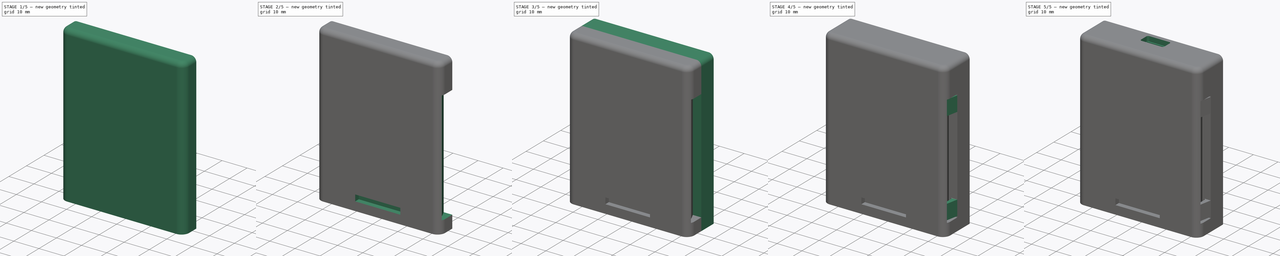
[diagram: build sequence overview — one tinted view per stage of 5, left to right]
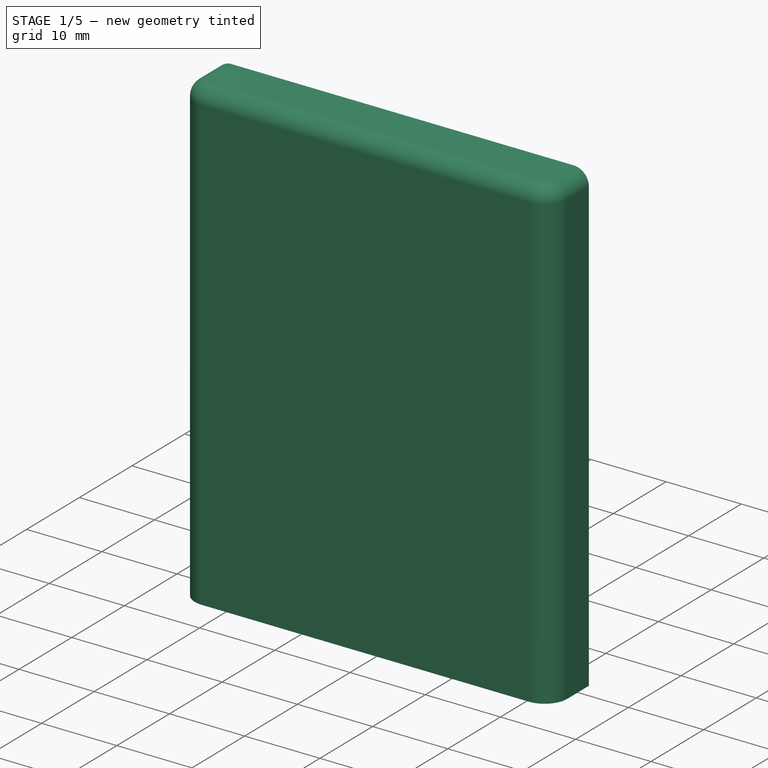
[diagram: stage 1 of 5 — iso view after this stage's code; geometry added in this stage tinted green]
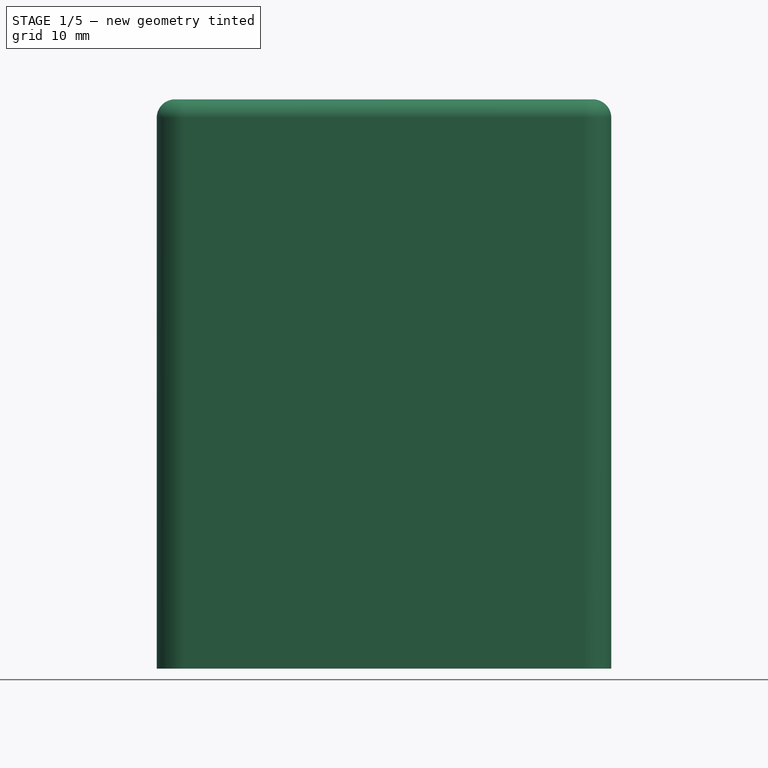
[diagram: stage 1 of 5 — front view after this stage's code; geometry added in this stage tinted green]
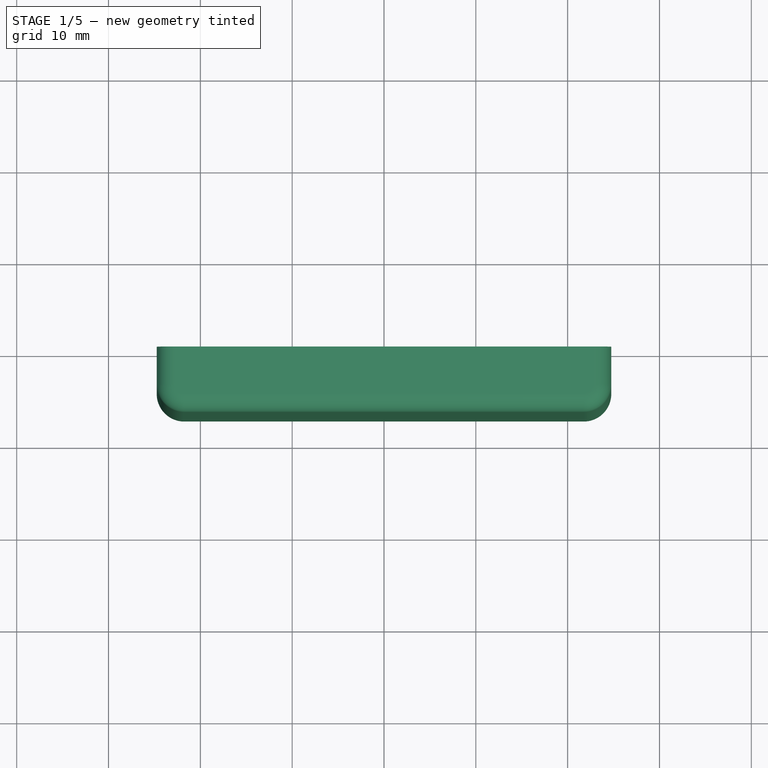
[diagram: stage 1 of 5 — top view after this stage's code; geometry added in this stage tinted green]
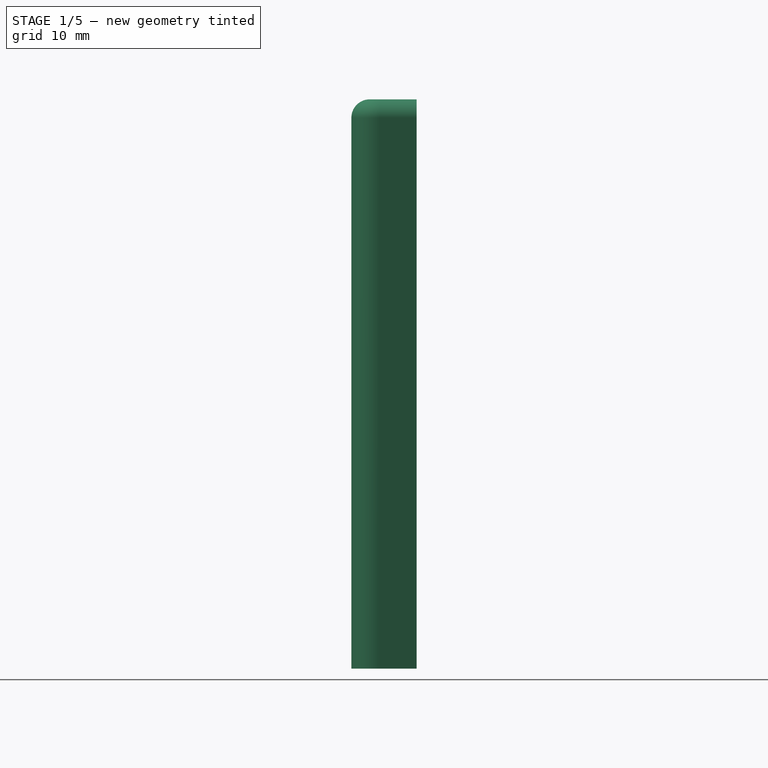
[diagram: stage 1 of 5 — right view after this stage's code; geometry added in this stage tinted green]
FCSTD DOCUMENT  (FreeCAD 0.19R24291 (Git))
Label: new_rumble_pak_lipo
License: All rights reserved
LicenseURL: http://en.wikipedia.org/wiki/All_rights_reserved
objects: Sketcher::SketchObject×17, PartDesign::Pocket×13, PartDesign::Plane×10, PartDesign::Pad×4, PartDesign::Fillet×3, PartDesign::Body×2
note: 69 computed .brp shape members not serialized (recipe doc carries the construction recipe); baked Part::Feature solids carry a one-line shape summary decoded from their .brp

FEATURE [Sketcher::SketchObject] Sketch001  label="SketchRounded"
  FullyConstrained = true
  MapMode = 5
  Support = -> [XY_Plane001]
  sketch-geometry (6):
    g0: LineSegment StartX=-24.75 StartY=0 StartZ=0 EndX=24.75 EndY=0 EndZ=0
    g1: LineSegment StartX=24.75 StartY=0 StartZ=0 EndX=24.75 EndY=-4.1 EndZ=0
    g2: LineSegment StartX=21.75 StartY=-7.1 StartZ=0 EndX=-21.75 EndY=-7.1 EndZ=0
    g3: LineSegment StartX=-24.75 StartY=-4.1 StartZ=0 EndX=-24.75 EndY=0 EndZ=0
    g4: ArcOfCircle CenterX=-21.75 CenterY=-4.1 CenterZ=0 NormalX=0 NormalY=0 NormalZ=1 AngleXU=0 Radius=3 StartAngle=3.14159 EndAngle=4.71239
    g5: ArcOfCircle CenterX=21.75 CenterY=-4.1 CenterZ=0 NormalX=0 NormalY=0 NormalZ=1 AngleXU=0 Radius=3 StartAngle=4.71239 EndAngle=6.28319
  constraints (15):
    c: Coincident(g0,g1)
    c: Coincident(g3,g0)
    c: Horizontal(g2)
    c: Vertical(g1)
    c: Vertical(g3)
    c: Symmetric(g0,g0,g-2)
    c: DistanceY(g0,g-1) = 0
    c: Tangent(g2,g4) = 1.5708
    c: Tangent(g3,g4) = 1.5708
    c: Tangent(g1,g5) = 1.5708
    c: Tangent(g2,g5) = 1.5708
    c: Radius(g5) = 3
    c: Radius(g4) = 3
    c: DistanceX(g0,g0) = 49.5
    c: DistanceY(g2,g0) = 7.1
FEATURE [PartDesign::Pad] Pad001  label="PadRounded"
  Direction = (1,1,1)
  Length = 62
  Length2 = 100
  Profile = -> Sketch001
  Type = 0
FEATURE [PartDesign::Fillet] Fillet
  Base = -> Pad001 [Edge16]
  BaseFeature = -> Pad001
  Radius = 2
  SupportTransform = false
FEATURE [PartDesign::Plane] DatumPlane  label="DatumPlaneRoundedInner"
  Length = 63.1909
  MapMode = 5
  Placement = pos=(0,0,0) rot=(0,0.707107,0.707107;3.14159rad)
  ResizeMode = 0
  Support = -> [Fillet]
  Width = 100.191
FEATURE [Sketcher::SketchObject] Sketch002  label="SketchBatteryPocket"
  FullyConstrained = true
  MapMode = 5
  Placement = pos=(0,0,0) rot=(0,0.707107,0.707107;3.14159rad)
  Support = -> [DatumPlane]
  sketch-geometry (4):
    g0: LineSegment StartX=-20.75 StartY=60.75 StartZ=0 EndX=20.75 EndY=60.75 EndZ=0
    g1: LineSegment StartX=20.75 StartY=60.75 StartZ=0 EndX=20.75 EndY=6.25 EndZ=0
    g2: LineSegment StartX=20.75 StartY=6.25 StartZ=0 EndX=-20.75 EndY=6.25 EndZ=0
    g3: LineSegment StartX=-20.75 StartY=6.25 StartZ=0 EndX=-20.75 EndY=60.75 EndZ=0
  constraints (11):
    c: Coincident(g0,g1)
    c: Coincident(g1,g2)
    c: Coincident(g2,g3)
    c: Coincident(g3,g0)
    c: Horizontal(g0)
    c: Vertical(g1)
    c: Vertical(g3)
    c: Symmetric(g1,g2,g-2)
    c: DistanceY(g-1,g2) = 6.25
    c: DistanceY(g2,g0) = 54.5
    c: DistanceX(g0,g0) = 41.5
FEATURE [PartDesign::Pocket] Pocket  label="PocketBattery"
  BaseFeature = -> Fillet
  Length = 5.5
  Length2 = 100
  Profile = -> Sketch002
  Type = 0
FEATURE [Sketcher::SketchObject] Sketch008  label="SketchTerminalBase001"
  FullyConstrained = true
  MapMode = 5
  Placement = pos=(0,0,0) rot=(0,0.707107,0.707107;3.14159rad)
  Support = -> [DatumPlane]
  sketch-geometry (8):
    g0: LineSegment StartX=-11.1 StartY=5 StartZ=0 EndX=-1.5 EndY=5 EndZ=0
    g1: LineSegment StartX=-1.5 StartY=5 StartZ=0 EndX=-1.5 EndY=3.8 EndZ=0
    g2: LineSegment StartX=-1.5 StartY=3.8 StartZ=0 EndX=-11.1 EndY=3.8 EndZ=0
    g3: LineSegment StartX=-11.1 StartY=3.8 StartZ=0 EndX=-11.1 EndY=5 EndZ=0
    g4: LineSegment StartX=1.5 StartY=5 StartZ=0 EndX=11.1 EndY=5 EndZ=0
    g5: LineSegment StartX=11.1 StartY=5 StartZ=0 EndX=11.1 EndY=3.8 EndZ=0
    g6: LineSegment StartX=11.1 StartY=3.8 StartZ=0 EndX=1.5 EndY=3.8 EndZ=0
    g7: LineSegment StartX=1.5 StartY=3.8 StartZ=0 EndX=1.5 EndY=5 EndZ=0
  constraints (22):
    c: Coincident(g0,g1)
    c: Coincident(g1,g2)
    c: Coincident(g2,g3)
    c: Coincident(g3,g0)
    c: Horizontal(g0)
    c: Horizontal(g2)
    c: Vertical(g1)
    c: Vertical(g3)
    c: Coincident(g4,g5)
    c: Coincident(g5,g6)
    c: Coincident(g6,g7)
    c: Coincident(g7,g4)
    c: Horizontal(g4)
    c: Horizontal(g6)
    c: Vertical(g5)
    c: Vertical(g7)
    c: Symmetric(g6,g1,g-2)
    c: Symmetric(g0,g4,g-2)
    c: DistanceX(g1,g6) = 3
    c: DistanceX(g0,g0) = 9.6
    c: DistanceY(g2,g0) = 1.2
    c: DistanceY(g-1,g0) = 5
FEATURE [PartDesign::Pocket] Pocket004  label="PocketTerminalBase001"
  BaseFeature = -> Pocket
  Length = 4.8
  Length2 = 100
  Profile = -> Sketch008
  Type = 0
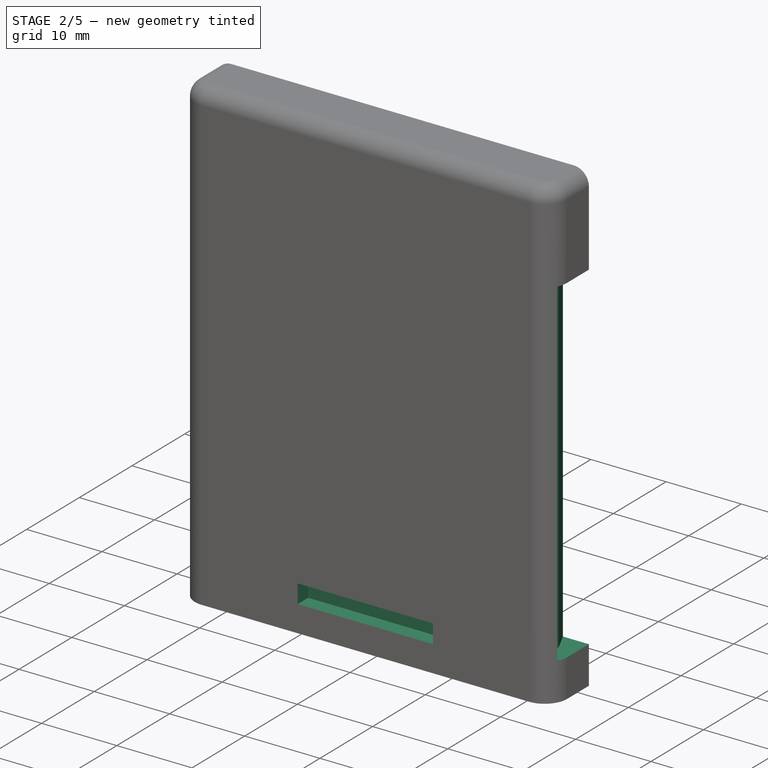
[diagram: stage 2 of 5 — iso view after this stage's code; geometry added in this stage tinted green]
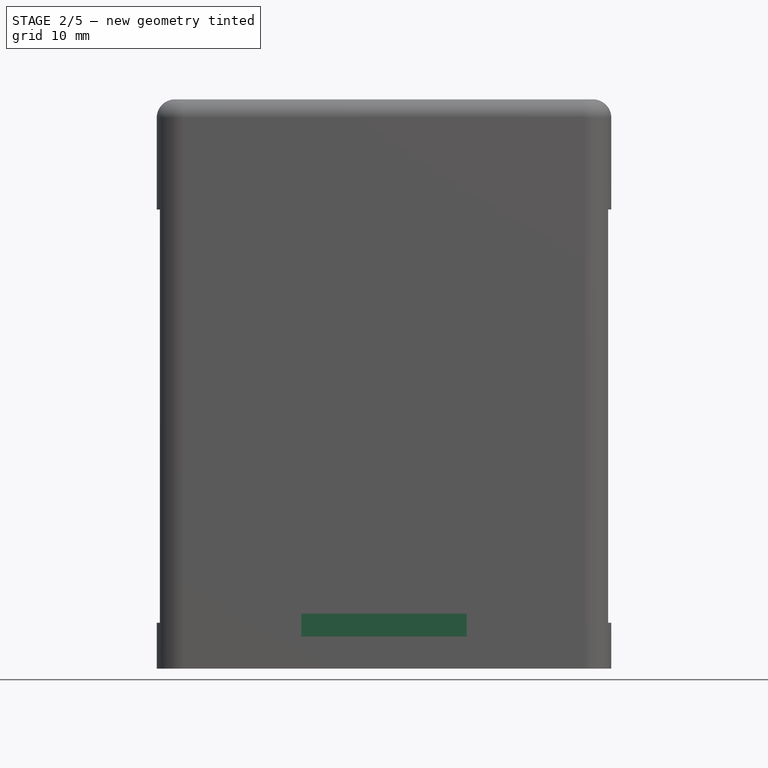
[diagram: stage 2 of 5 — front view after this stage's code; geometry added in this stage tinted green]
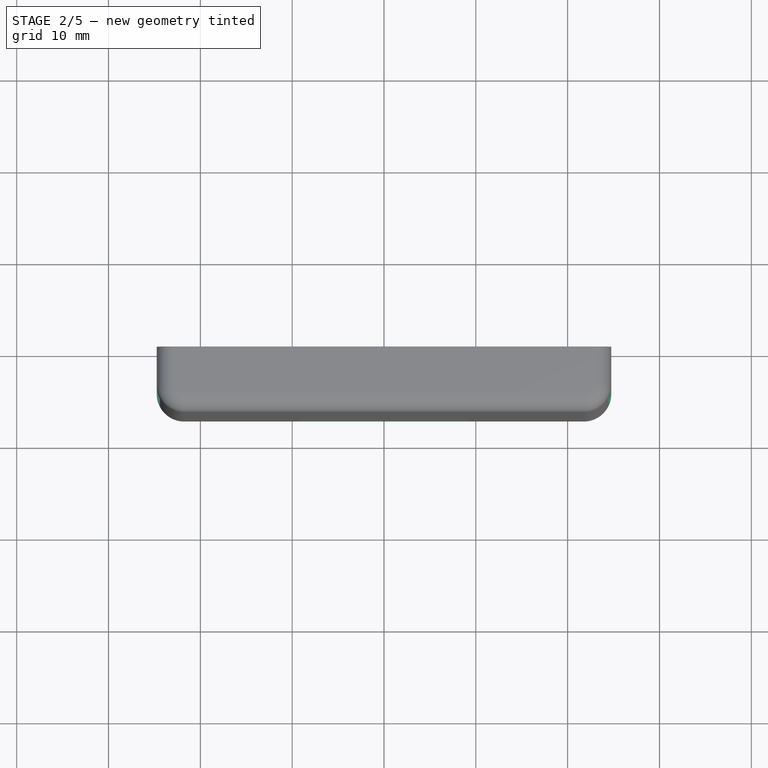
[diagram: stage 2 of 5 — top view after this stage's code; geometry added in this stage tinted green]
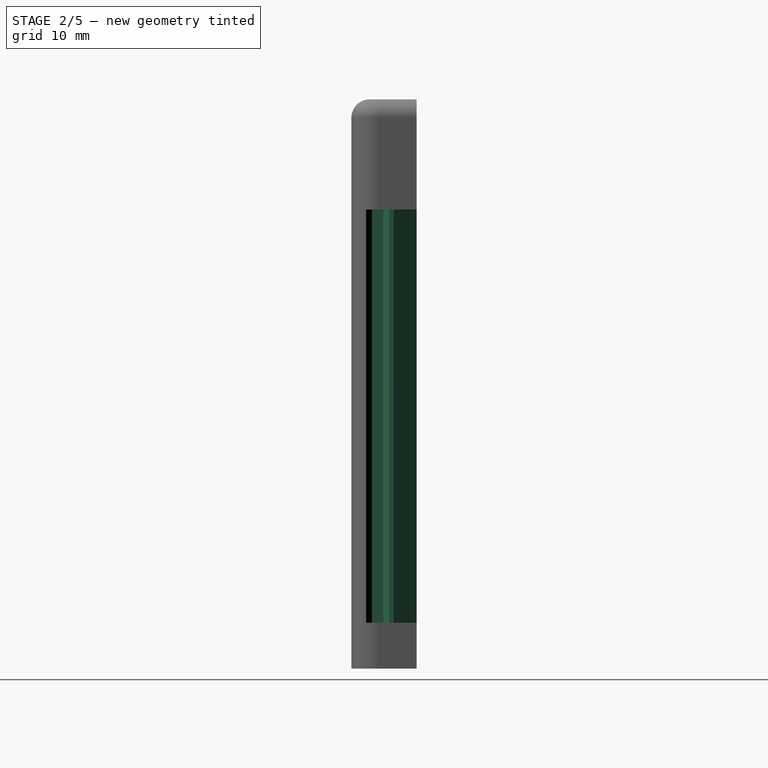
[diagram: stage 2 of 5 — right view after this stage's code; geometry added in this stage tinted green]
FEATURE [Sketcher::SketchObject] Sketch009  label="SketchTerminalAppendages001"
  FullyConstrained = true
  MapMode = 5
  Placement = pos=(0,0,0) rot=(0,0.707107,0.707107;3.14159rad)
  Support = -> [DatumPlane]
  sketch-geometry (24):
    g0: LineSegment StartX=-10 StartY=4.5 StartZ=0 EndX=-2.5 EndY=4.5 EndZ=0
    g1: LineSegment StartX=-2.5 StartY=4.5 StartZ=0 EndX=-2.5 EndY=-0.5 EndZ=0
    g2: LineSegment StartX=-2.5 StartY=-0.5 StartZ=0 EndX=-10 EndY=-0.5 EndZ=0
    g3: LineSegment StartX=-10 StartY=-0.5 StartZ=0 EndX=-10 EndY=4.5 EndZ=0
    g4: LineSegment StartX=2.5 StartY=4.5 StartZ=0 EndX=10 EndY=4.5 EndZ=0
    g5: LineSegment StartX=10 StartY=4.5 StartZ=0 EndX=10 EndY=-0.5 EndZ=0
    g6: LineSegment StartX=10 StartY=-0.5 StartZ=0 EndX=2.5 EndY=-0.5 EndZ=0
    g7: LineSegment StartX=2.5 StartY=-0.5 StartZ=0 EndX=2.5 EndY=4.5 EndZ=0
    g8: LineSegment StartX=-19.4 StartY=11.5 StartZ=0 EndX=-12.1 EndY=11.5 EndZ=0
    g9: LineSegment StartX=-11.1 StartY=10.5 StartZ=0 EndX=-11.1 EndY=3 EndZ=0
    g10: LineSegment StartX=-12.1 StartY=2 StartZ=0 EndX=-19.4 EndY=2 EndZ=0
    g11: LineSegment StartX=-20.4 StartY=3 StartZ=0 EndX=-20.4 EndY=10.5 EndZ=0
    g12: LineSegment StartX=12.1 StartY=11.5 StartZ=0 EndX=19.4 EndY=11.5 EndZ=0
    g13: LineSegment StartX=20.4 StartY=10.5 StartZ=0 EndX=20.4 EndY=3 EndZ=0
    g14: LineSegment StartX=19.4 StartY=2 StartZ=0 EndX=12.1 EndY=2 EndZ=0
    g15: LineSegment StartX=11.1 StartY=3 StartZ=0 EndX=11.1 EndY=10.5 EndZ=0
    g16: ArcOfCircle CenterX=-19.4 CenterY=3 CenterZ=0 NormalX=0 NormalY=0 NormalZ=1 AngleXU=0 Radius=1 StartAngle=3.14159 EndAngle=4.71239
    g17: ArcOfCircle CenterX=-19.4 CenterY=10.5 CenterZ=0 NormalX=0 NormalY=0 NormalZ=1 AngleXU=0 Radius=1 StartAngle=1.5708 EndAngle=3.14159
    g18: ArcOfCircle CenterX=-12.1 CenterY=10.5 CenterZ=0 NormalX=0 NormalY=0 NormalZ=1 AngleXU=0 Radius=1 StartAngle=-9e-16 EndAngle=1.5708
    g19: ArcOfCircle CenterX=12.1 CenterY=10.5 CenterZ=0 NormalX=0 NormalY=0 NormalZ=1 AngleXU=0 Radius=1 StartAngle=1.5708 EndAngle=3.14159
    g20: ArcOfCircle CenterX=19.4 CenterY=10.5 CenterZ=0 NormalX=0 NormalY=0 NormalZ=1 AngleXU=0 Radius=1 StartAngle=-9e-16 EndAngle=1.5708
    g21: ArcOfCircle CenterX=19.4 CenterY=3 CenterZ=0 NormalX=0 NormalY=0 NormalZ=1 AngleXU=0 Radius=1 StartAngle=4.71239 EndAngle=6.28319
    g22: ArcOfCircle CenterX=12.1 CenterY=3 CenterZ=0 NormalX=0 NormalY=0 NormalZ=1 AngleXU=0 Radius=1 StartAngle=3.14159 EndAngle=4.71239
    g23: ArcOfCircle CenterX=-12.1 CenterY=3 CenterZ=0 NormalX=0 NormalY=0 NormalZ=1 AngleXU=0 Radius=1 StartAngle=4.71239 EndAngle=6.28319
  constraints (58):
    c: Coincident(g0,g1)
    c: Coincident(g1,g2)
    c: Coincident(g2,g3)
    c: Coincident(g3,g0)
    c: Horizontal(g0)
    c: Horizontal(g2)
    c: Vertical(g1)
    c: Vertical(g3)
    c: Coincident(g4,g5)
    c: Coincident(g5,g6)
    c: Coincident(g6,g7)
    c: Coincident(g7,g4)
    c: Horizontal(g4)
    c: Horizontal(g6)
    c: Vertical(g5)
    c: Vertical(g7)
    c: Horizontal(g8)
    c: Horizontal(g10)
    c: Vertical(g9)
    c: Symmetric(g0,g4,g-2)
    c: Symmetric(g2,g5,g-2)
    c: DistanceY(g-1,g0) = 4.5
    c: DistanceY(g1,g0) = 5
    c: DistanceX(g1,g-1) = 2.5
    c: DistanceX(g2,g1) = 7.5
    c: Tangent(g10,g16) = 1.5708
    c: Tangent(g11,g16) = 1.5708
    c: Tangent(g8,g17) = 1.5708
    c: Tangent(g11,g17) = 1.5708
    c: Tangent(g8,g18) = 1.5708
    c: Tangent(g9,g18) = 1.5708
    c: Tangent(g12,g19) = 1.5708
    c: Tangent(g15,g19) = 1.5708
    c: Tangent(g12,g20) = 1.5708
    c: Tangent(g13,g20) = 1.5708
    c: Tangent(g13,g21) = 1.5708
    c: Tangent(g14,g21) = 1.5708
    c: Tangent(g14,g22) = 1.5708
    c: Tangent(g15,g22) = 1.5708
    c: Tangent(g9,g23) = 1.5708
    c: Tangent(g10,g23) = 1.5708
    c: DistanceY(g-1,g10) = 2
    c: DistanceX(g9,g15) = 22.2
    c: DistanceX(g11,g9) = 9.3
    c: DistanceY(g10,g8) = 9.5
    c: Symmetric(g8,g12,g-2)
    c: Symmetric(g8,g12,g-2)
    c: Symmetric(g11,g13,g-2)
    c: Symmetric(g9,g15,g-2)
    c: Symmetric(g11,g13,g-2)
    c: Symmetric(g10,g14,g-2)
    c: Symmetric(g10,g14,g-2)
    c: Symmetric(g9,g15,g-2)
    c: Vertical(g11)
    c: Radius(g17) = 1
    c: Radius(g18) = 1
    c: Radius(g23) = 1
    c: Radius(g16) = 1
FEATURE [PartDesign::Pocket] Pocket005  label="PocketTerminalAppendages001"
  BaseFeature = -> Pocket004
  Length = 3.75
  Length2 = 100
  Profile = -> Sketch009
  Type = 0
FEATURE [PartDesign::Plane] DatumPlane004  label="DatumPlaneRoundedTop"
  Length = 60
  MapMode = 5
  Placement = pos=(0,0,62) rot=(0,0,1;0rad)
  ResizeMode = 0
  Support = -> [Pocket005]
  Width = 60
FEATURE [PartDesign::Plane] DatumPlane005  label="DatumPlaneRoundedBottom"
  Length = 60
  MapMode = 5
  Placement = pos=(0,0,0) rot=(1,0,0;3.14159rad)
  ResizeMode = 0
  Support = -> [Pocket005]
  Width = 60
FEATURE [Sketcher::SketchObject] Sketch010  label="SketchSnapFitRecepticle"
  AttachmentOffset = pos=(0,0,-5) rot=(0,0,1;0rad)
  FullyConstrained = true
  MapMode = 5
  Placement = pos=(0,0,5) rot=(1,0,0;3.14159rad)
  Support = -> [DatumPlane005]
  sketch-geometry (20):
    g0: LineSegment StartX=-24.85 StartY=-0.1 StartZ=0 EndX=-24.85 EndY=5.5 EndZ=0
    g1: LineSegment StartX=-22.5 StartY=5.5 StartZ=0 EndX=-21.75 EndY=4.875 EndZ=0
    g2: LineSegment StartX=-21.75 StartY=4.875 StartZ=0 EndX=-21.75 EndY=3.625 EndZ=0
    g3: LineSegment StartX=-21.75 StartY=3.625 StartZ=0 EndX=-22.5 EndY=3 EndZ=0
    g4: LineSegment StartX=-22.5 StartY=3 StartZ=0 EndX=-22.5 EndY=2.5 EndZ=0
    g5: LineSegment StartX=-22.5 StartY=2.5 StartZ=0 EndX=-21.25 EndY=-0.1 EndZ=0
    g6: LineSegment StartX=-21.25 StartY=-0.1 StartZ=0 EndX=-24.85 EndY=-0.1 EndZ=0
    g7: LineSegment StartX=24.85 StartY=-0.1 StartZ=0 EndX=24.85 EndY=5.5 EndZ=0
    g8: LineSegment StartX=22.5 StartY=5.5 StartZ=0 EndX=21.75 EndY=4.875 EndZ=0
    g9: LineSegment StartX=21.75 StartY=4.875 StartZ=0 EndX=21.75 EndY=3.625 EndZ=0
    g10: LineSegment StartX=21.75 StartY=3.625 StartZ=0 EndX=22.5 EndY=3 EndZ=0
    g11: LineSegment StartX=22.5 StartY=3 StartZ=0 EndX=22.5 EndY=2.5 EndZ=0
    g12: LineSegment StartX=22.5 StartY=2.5 StartZ=0 EndX=21.25 EndY=-0.1 EndZ=0
    g13: LineSegment StartX=21.25 StartY=-0.1 StartZ=0 EndX=24.85 EndY=-0.1 EndZ=0
    g14: LineSegment StartX=-24.85 StartY=5.5 StartZ=0 EndX=-24.75 EndY=5.5 EndZ=0
    g15: LineSegment StartX=-24.75 StartY=5.5 StartZ=0 EndX=-22.5 EndY=5.5 EndZ=0
    g16: LineSegment StartX=24.85 StartY=5.5 StartZ=0 EndX=24.75 EndY=5.5 EndZ=0
    g17: LineSegment StartX=24.75 StartY=5.5 StartZ=0 EndX=22.5 EndY=5.5 EndZ=0
    g18: GeomPoint X=-24.85 Y=5.25 Z=0
    g19: GeomPoint X=24.85 Y=5.25 Z=0
  constraints (48):
    c: Vertical(g0)
    c: Coincident(g1,g2)
    c: Vertical(g2)
    c: Coincident(g2,g3)
    c: Coincident(g3,g4)
    c: Vertical(g4)
    c: Coincident(g4,g5)
    c: Coincident(g5,g6)
    c: Coincident(g6,g0)
    c: Horizontal(g6)
    c: Coincident(g8,g9)
    c: Coincident(g9,g10)
    c: Coincident(g10,g11)
    c: Coincident(g11,g12)
    c: Coincident(g12,g13)
    c: Coincident(g13,g7)
    c: Symmetric(g7,g0,g-2)
    c: Symmetric(g1,g8,g-2)
    c: Symmetric(g1,g8,g-2)
    c: Symmetric(g3,g10,g-2)
    c: Symmetric(g5,g12,g-2)
    c: DistanceY(g0,g-1) = 0.1
    c: DistanceY(g0,g0) = 5.6
    c: DistanceX(g0,g-1) = 24.85
    c: Coincident(g0,g14)
    c: Horizontal(g14)
    c: Coincident(g14,g15)
    c: Coincident(g15,g1)
    c: Horizontal(g15)
    c: Coincident(g7,g16)
    c: Coincident(g16,g17)
    c: Coincident(g17,g8)
    c: Symmetric(g7,g0,g-2)
    c: Symmetric(g14,g16,g-2)
    c: DistanceX(g14,g-1) = 24.75
    c: DistanceX(g14,g1) = 2.25
    c: DistanceX(g1,g1) = 0.75
    c: Vertical(g3,g1)
    c: PointOnObject(g18,g0)
    c: DistanceY(g-1,g18) = 5.25
    c: Symmetric(g19,g18,g-2)
    c: DistanceY(g1,g1) = 0.625
    c: DistanceY(g2,g1) = 1.25
    c: DistanceY(g3,g2) = 0.625
    c: DistanceY(g4,g3) = 0.5
    c: DistanceX(g14,g5) = 3.5
    c: Symmetric(g9,g2,g-2)
    c: Symmetric(g11,g4,g-2)
FEATURE [PartDesign::Pocket] Pocket006  label="PocketSnapFitRecepticle"
  BaseFeature = -> Pocket005
  Length = 45
  Length2 = 100
  Profile = -> Sketch010
  Type = 0
FEATURE [PartDesign::Body] Body  label="BodySquared"
  Group = -> [Sketch,Pad,Fillet001,Fillet002,DatumPlane001,Sketch003,Pocket001,Sketch004,Pocket002,DatumPlane002,Sketch005,Pad002,Sketch007,Pocket003,DatumPlane006,Sketch011,Pocket007,Sketch012,Pocket008,Sketch013,Pocket009,DatumPlane007,Sketch014,Pocket010,DatumPlane008,Sketch015,Pad003]
  Origin = -> Origin
  Tip = -> Pad003
FEATURE [PartDesign::Plane] DatumPlane009  label="DatumPlaneRoundedOuter"
  Length = 63.1909
  MapMode = 5
  Placement = pos=(0,-7.1,0) rot=(1,0,0;1.5708rad)
  ResizeMode = 0
  Support = -> [Pocket006]
  Width = 100.191
FEATURE [Sketcher::SketchObject] Sketch016  label="SketchClip"
  FullyConstrained = true
  MapMode = 5
  Placement = pos=(0,-7.1,0) rot=(1,0,0;1.5708rad)
  Support = -> [DatumPlane009]
  sketch-geometry (4):
    g0: LineSegment StartX=-9 StartY=6 StartZ=0 EndX=9 EndY=6 EndZ=0
    g1: LineSegment StartX=9 StartY=6 StartZ=0 EndX=9 EndY=3.5 EndZ=0
    g2: LineSegment StartX=9 StartY=3.5 StartZ=0 EndX=-9 EndY=3.5 EndZ=0
    g3: LineSegment StartX=-9 StartY=3.5 StartZ=0 EndX=-9 EndY=6 EndZ=0
  constraints (11):
    c: Coincident(g0,g1)
    c: Coincident(g1,g2)
    c: Coincident(g2,g3)
    c: Coincident(g3,g0)
    c: Horizontal(g2)
    c: Vertical(g1)
    c: Vertical(g3)
    c: Symmetric(g0,g0,g-2)
    c: DistanceX(g0,g0) = 18
    c: DistanceY(g1,g0) = 2.5
    c: DistanceY(g-1,g1) = 3.5
FEATURE [PartDesign::Pocket] Pocket011  label="PocketClip"
  BaseFeature = -> Pocket006
  Length = 2
  Length2 = 100
  Profile = -> Sketch016
  Type = 0
FEATURE [PartDesign::Plane] DatumPlane010  label="DatumPlaneClipPocketSide"
  Length = 60
  MapMode = 5
  Placement = pos=(0,8e-16,3.5) rot=(0,0,1;0rad)
  ResizeMode = 0
  Support = -> [Pocket011]
  Width = 60
FEATURE [Sketcher::SketchObject] Sketch017  label="SketchClipRamp"
  FullyConstrained = true
  MapMode = 5
  Placement = pos=(0,8e-16,3.5) rot=(0,0,1;0rad)
  Support = -> [DatumPlane010]
  sketch-geometry (3):
    g0: LineSegment StartX=-5.55 StartY=-0.1 StartZ=0 EndX=-7.3 EndY=2.9 EndZ=0
    g1: LineSegment StartX=-7.3 StartY=2.9 StartZ=0 EndX=-7.3 EndY=-0.1 EndZ=0
    g2: LineSegment StartX=-7.3 StartY=-0.1 StartZ=0 EndX=-5.55 EndY=-0.1 EndZ=0
  constraints (9):
    c: Coincident(g0,g1)
    c: Vertical(g1)
    c: Coincident(g1,g2)
    c: Coincident(g2,g0)
    c: Horizontal(g2)
    c: DistanceX(g1,g-1) = 7.3
    c: DistanceY(g1,g0) = 3
    c: DistanceX(g1,g0) = 1.75
    c: DistanceY(g1,g-1) = 0.1
FEATURE [PartDesign::Pocket] Pocket012  label="PocketClipRamp"
  BaseFeature = -> Pocket011
  Length = 18
  Length2 = 100
  Profile = -> Sketch017
  Reversed = true
  Type = 0
FEATURE [PartDesign::Body] Body001  label="BodyRounded"
  Group = -> [Sketch001,Pad001,Fillet,DatumPlane,Sketch002,Pocket,Sketch008,Pocket004,Sketch009,Pocket005,DatumPlane004,DatumPlane005,Sketch010,Pocket006,DatumPlane009,Sketch016,Pocket011,DatumPlane010,Sketch017,Pocket012]
  Origin = -> Origin001
  Tip = -> Pocket012
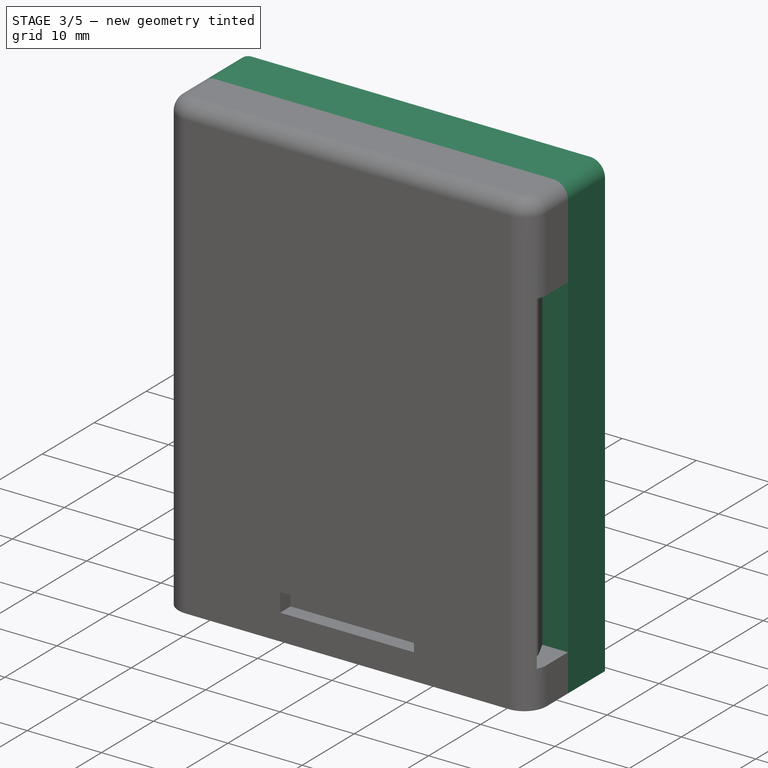
[diagram: stage 3 of 5 — iso view after this stage's code; geometry added in this stage tinted green]
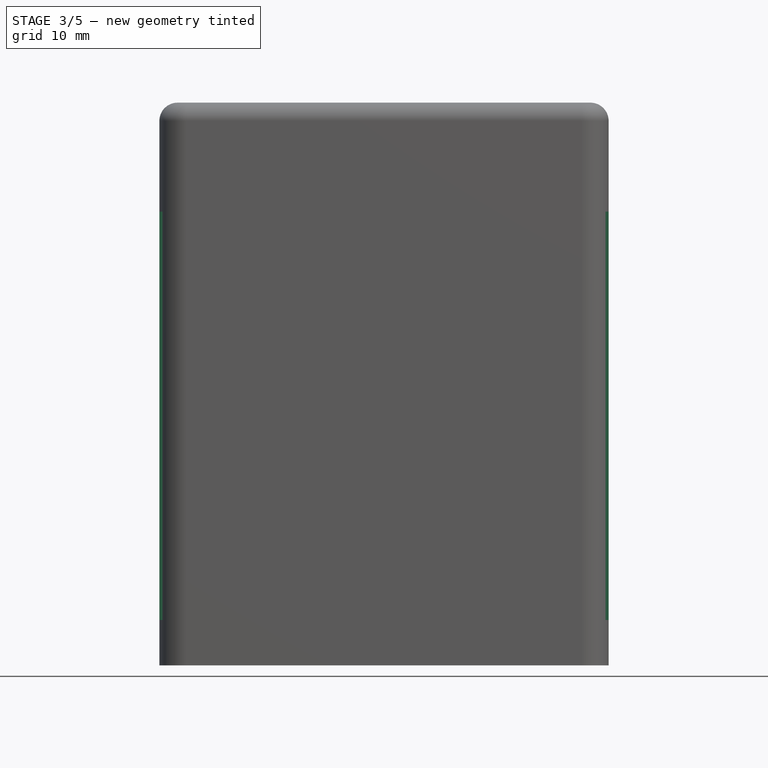
[diagram: stage 3 of 5 — front view after this stage's code; geometry added in this stage tinted green]
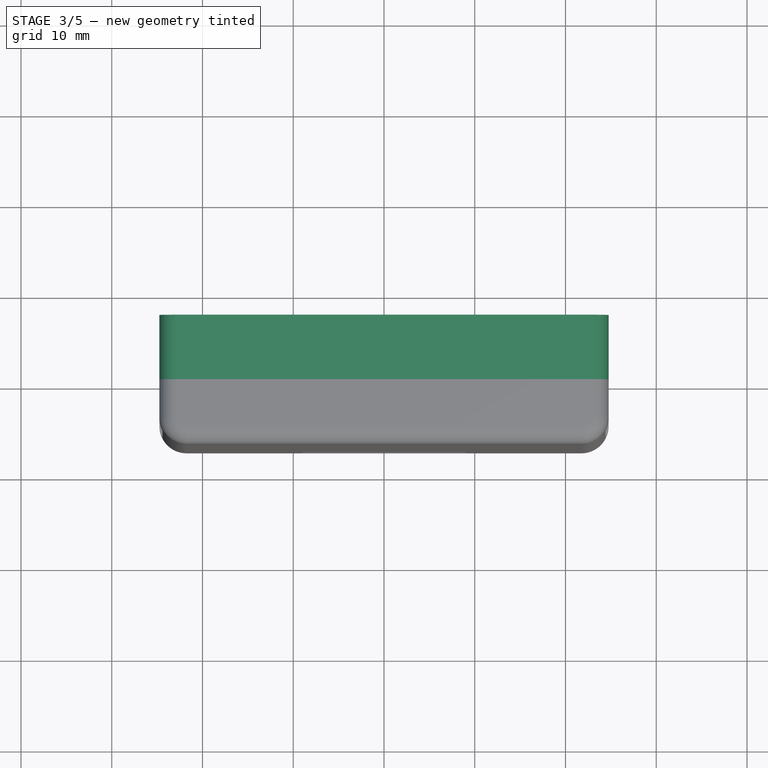
[diagram: stage 3 of 5 — top view after this stage's code; geometry added in this stage tinted green]
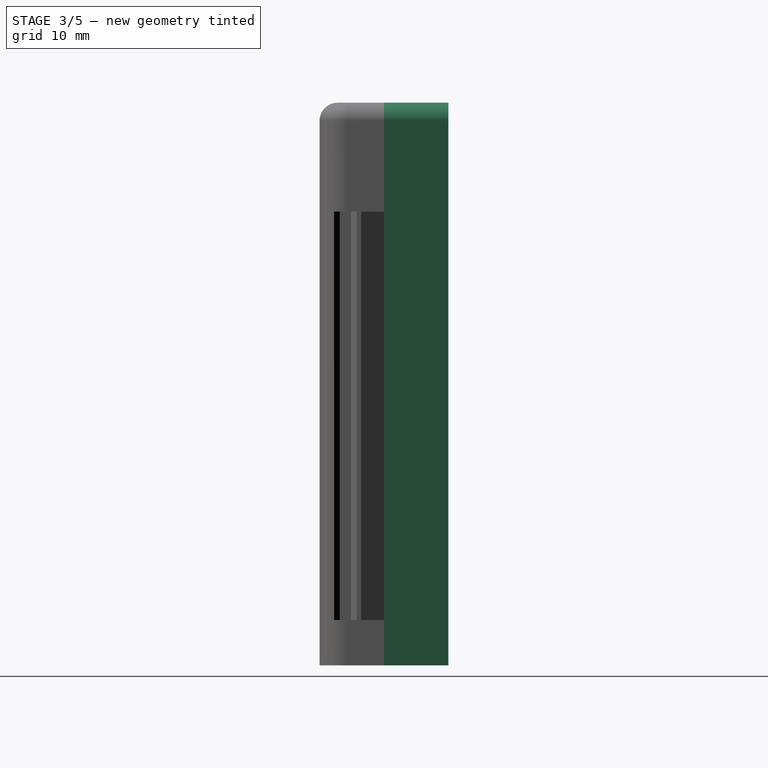
[diagram: stage 3 of 5 — right view after this stage's code; geometry added in this stage tinted green]
FEATURE [Sketcher::SketchObject] Sketch  label="SketchSquared"
  FullyConstrained = true
  MapMode = 5
  Support = -> [XY_Plane]
  sketch-geometry (4):
    g0: LineSegment StartX=-24.75 StartY=7.1 StartZ=0 EndX=24.75 EndY=7.1 EndZ=0
    g1: LineSegment StartX=24.75 StartY=7.1 StartZ=0 EndX=24.75 EndY=0 EndZ=0
    g2: LineSegment StartX=24.75 StartY=0 StartZ=0 EndX=-24.75 EndY=0 EndZ=0
    g3: LineSegment StartX=-24.75 StartY=0 StartZ=0 EndX=-24.75 EndY=7.1 EndZ=0
  constraints (10):
    c: Coincident(g0,g1)
    c: Coincident(g3,g0)
    c: Vertical(g1)
    c: Symmetric(g2,g1,g-2)
    c: DistanceY(g2,g0) = 7.1
    c: DistanceX(g0,g0) = 49.5
    c: DistanceY(g-1,g1) = 0
    c: Symmetric(g0,g0,g-2)
    c: Coincident(g2,g1)
    c: Coincident(g2,g3)
FEATURE [PartDesign::Pad] Pad  label="PadSquared"
  Direction = (1,1,1)
  Length = 62
  Length2 = 100
  Profile = -> Sketch
  Type = 0
FEATURE [PartDesign::Fillet] Fillet001
  Base = -> Pad [Edge7]
  BaseFeature = -> Pad
  Radius = 2
  SupportTransform = false
FEATURE [PartDesign::Fillet] Fillet002
  Base = -> Fillet001 [Edge13]
  BaseFeature = -> Fillet001
  Radius = 2
  SupportTransform = false
FEATURE [PartDesign::Plane] DatumPlane001  label="DatumPlaneSquaredInner"
  Length = 60
  MapMode = 5
  Placement = pos=(0,0,0) rot=(1,0,0;1.5708rad)
  ResizeMode = 0
  Support = -> [Pad]
  Width = 60
FEATURE [Sketcher::SketchObject] Sketch003  label="SketchBatteryPocket001"
  FullyConstrained = true
  MapMode = 5
  Placement = pos=(0,0,0) rot=(1,0,0;1.5708rad)
  Support = -> [DatumPlane001]
  sketch-geometry (4):
    g0: LineSegment StartX=-20.75 StartY=60.75 StartZ=0 EndX=20.75 EndY=60.75 EndZ=0
    g1: LineSegment StartX=20.75 StartY=60.75 StartZ=0 EndX=20.75 EndY=6.25 EndZ=0
    g2: LineSegment StartX=20.75 StartY=6.25 StartZ=0 EndX=-20.75 EndY=6.25 EndZ=0
    g3: LineSegment StartX=-20.75 StartY=6.25 StartZ=0 EndX=-20.75 EndY=60.75 EndZ=0
  constraints (11):
    c: Coincident(g0,g1)
    c: Coincident(g1,g2)
    c: Coincident(g2,g3)
    c: Coincident(g3,g0)
    c: Horizontal(g0)
    c: Vertical(g1)
    c: Vertical(g3)
    c: Symmetric(g1,g2,g-2)
    c: DistanceY(g-1,g1) = 6.25
    c: DistanceY(g1,g0) = 54.5
    c: DistanceX(g0,g0) = 41.5
FEATURE [PartDesign::Pocket] Pocket001  label="PocketBattery001"
  BaseFeature = -> Fillet002
  Length = 1
  Length2 = 100
  Profile = -> Sketch003
  Type = 0
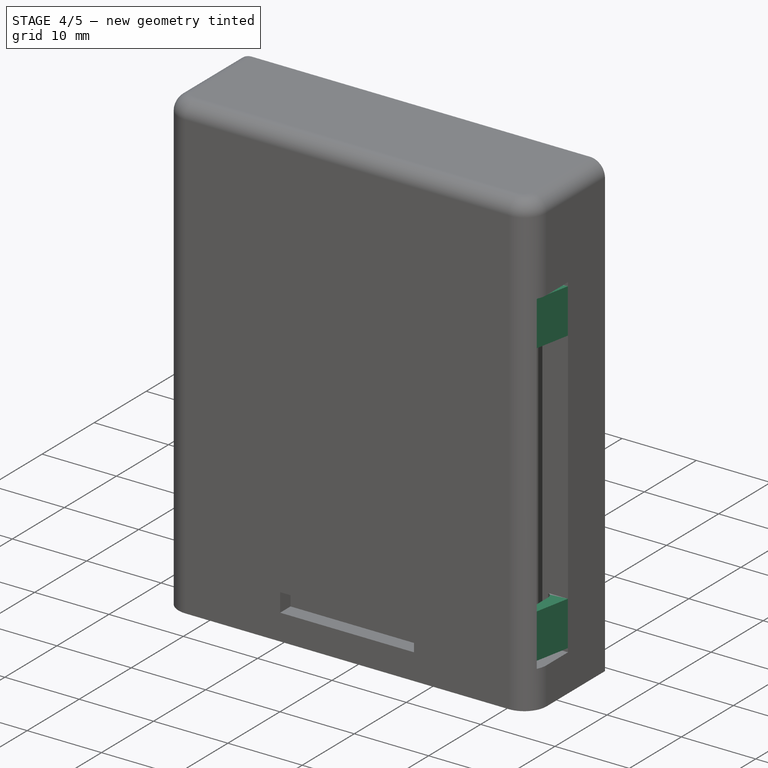
[diagram: stage 4 of 5 — iso view after this stage's code; geometry added in this stage tinted green]
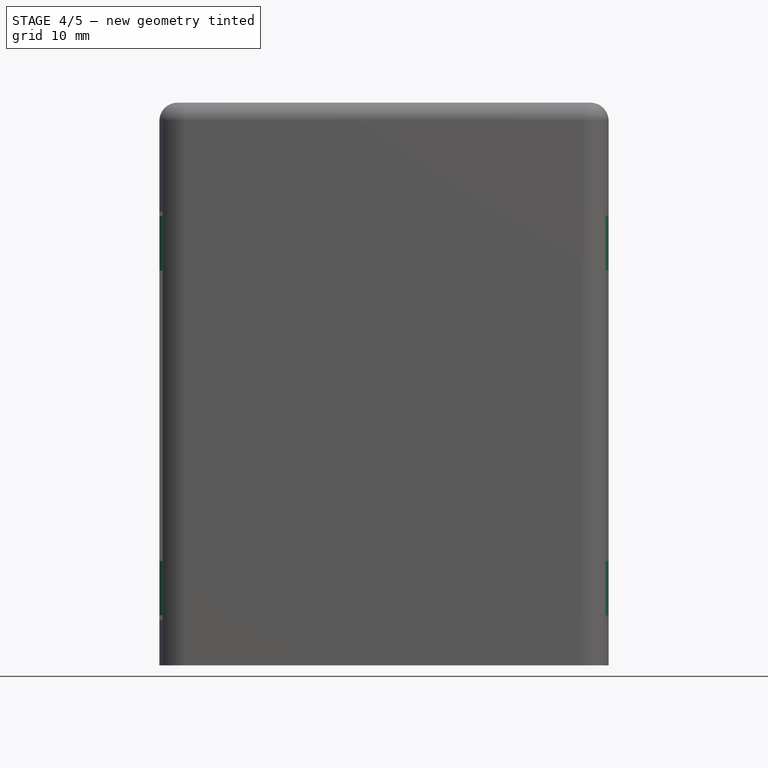
[diagram: stage 4 of 5 — front view after this stage's code; geometry added in this stage tinted green]
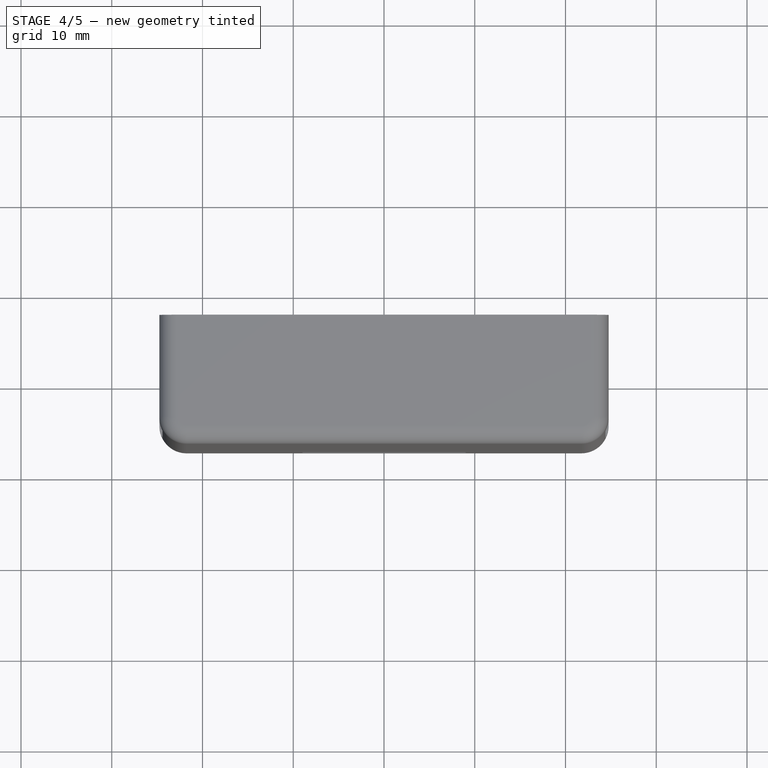
[diagram: stage 4 of 5 — top view after this stage's code; geometry added in this stage tinted green]
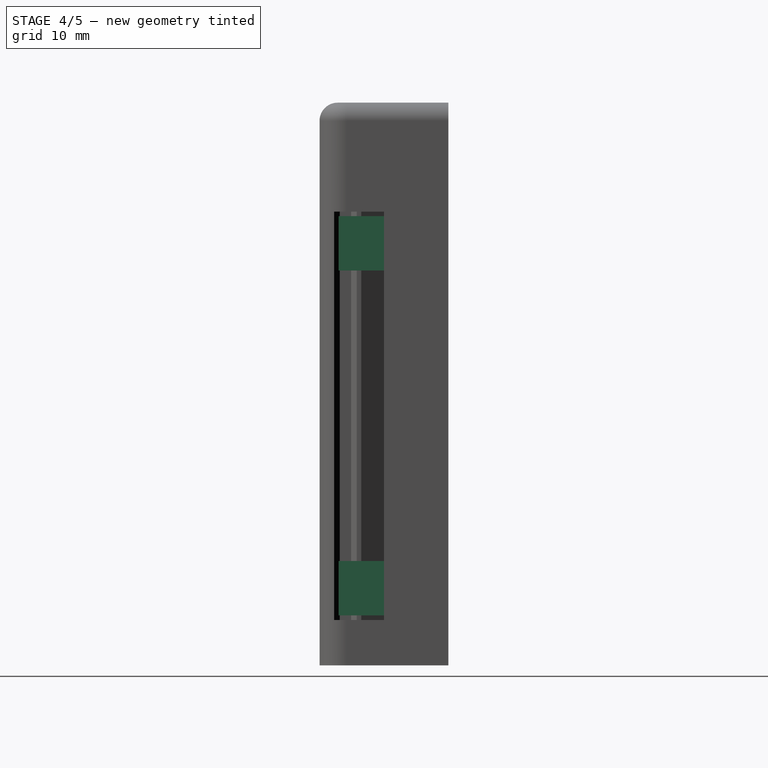
[diagram: stage 4 of 5 — right view after this stage's code; geometry added in this stage tinted green]
FEATURE [Sketcher::SketchObject] Sketch004  label="SketchTerminalBase"
  FullyConstrained = true
  MapMode = 5
  Placement = pos=(0,0,0) rot=(1,0,0;1.5708rad)
  Support = -> [DatumPlane001]
  sketch-geometry (8):
    g0: LineSegment StartX=-11.1 StartY=5 StartZ=0 EndX=-1.5 EndY=5 EndZ=0
    g1: LineSegment StartX=-1.5 StartY=5 StartZ=0 EndX=-1.5 EndY=3.8 EndZ=0
    g2: LineSegment StartX=-1.5 StartY=3.8 StartZ=0 EndX=-11.1 EndY=3.8 EndZ=0
    g3: LineSegment StartX=-11.1 StartY=3.8 StartZ=0 EndX=-11.1 EndY=5 EndZ=0
    g4: LineSegment StartX=1.5 StartY=5 StartZ=0 EndX=11.1 EndY=5 EndZ=0
    g5: LineSegment StartX=11.1 StartY=5 StartZ=0 EndX=11.1 EndY=3.8 EndZ=0
    g6: LineSegment StartX=11.1 StartY=3.8 StartZ=0 EndX=1.5 EndY=3.8 EndZ=0
    g7: LineSegment StartX=1.5 StartY=3.8 StartZ=0 EndX=1.5 EndY=5 EndZ=0
  constraints (22):
    c: Coincident(g0,g1)
    c: Coincident(g1,g2)
    c: Coincident(g2,g3)
    c: Coincident(g3,g0)
    c: Horizontal(g0)
    c: Horizontal(g2)
    c: Vertical(g1)
    c: Vertical(g3)
    c: Coincident(g4,g5)
    c: Coincident(g5,g6)
    c: Coincident(g6,g7)
    c: Coincident(g7,g4)
    c: Horizontal(g4)
    c: Horizontal(g6)
    c: Vertical(g5)
    c: Vertical(g7)
    c: Symmetric(g4,g0,g-2)
    c: Symmetric(g2,g5,g-2)
    c: DistanceX(g1,g6) = 3
    c: DistanceX(g0,g0) = 9.6
    c: DistanceY(g2,g0) = 1.2
    c: DistanceY(g-1,g0) = 5
FEATURE [PartDesign::Pocket] Pocket002  label="PocketTerminalBase"
  BaseFeature = -> Pocket001
  Length = 4.8
  Length2 = 100
  Profile = -> Sketch004
  Type = 0
FEATURE [PartDesign::Plane] DatumPlane002  label="DatumPlaneSquaredBottom"
  Length = 60
  MapMode = 5
  Placement = pos=(0,0,0) rot=(1,0,0;3.14159rad)
  ResizeMode = 0
  Support = -> [Pocket002]
  Width = 60
FEATURE [Sketcher::SketchObject] Sketch005  label="SketchSnapFit"
  FullyConstrained = true
  MapMode = 5
  Placement = pos=(0,0,0) rot=(1,0,0;3.14159rad)
  Support = -> [DatumPlane002]
  sketch-geometry (22):
    g0: LineSegment StartX=-24.75 StartY=-0.1 StartZ=0 EndX=-23.75 EndY=5 EndZ=0
    g1: LineSegment StartX=-23.75 StartY=5 StartZ=0 EndX=-22.75 EndY=5 EndZ=0
    g2: LineSegment StartX=-22.75 StartY=5 StartZ=0 EndX=-22.25 EndY=4.5 EndZ=0
    g3: LineSegment StartX=-22.25 StartY=4.5 StartZ=0 EndX=-22.25 EndY=4 EndZ=0
    g4: LineSegment StartX=-22.25 StartY=4 StartZ=0 EndX=-22.75 EndY=3.5 EndZ=0
    g5: LineSegment StartX=-22.75 StartY=3.5 StartZ=0 EndX=-22.75 EndY=0.95 EndZ=0
    g6: LineSegment StartX=24.75 StartY=-0.1 StartZ=0 EndX=23.75 EndY=5 EndZ=0
    g7: LineSegment StartX=23.75 StartY=5 StartZ=0 EndX=22.75 EndY=5 EndZ=0
    g8: LineSegment StartX=22.75 StartY=5 StartZ=0 EndX=22.25 EndY=4.5 EndZ=0
    g9: LineSegment StartX=22.25 StartY=4.5 StartZ=0 EndX=22.25 EndY=4 EndZ=0
    g10: LineSegment StartX=22.25 StartY=4 StartZ=0 EndX=22.75 EndY=3.5 EndZ=0
    g11: LineSegment StartX=22.75 StartY=3.5 StartZ=0 EndX=22.75 EndY=0.95 EndZ=0
    g12: LineSegment StartX=24.75 StartY=-0.1 StartZ=0 EndX=24.75 EndY=-1.1 EndZ=0
    g13: LineSegment StartX=24.75 StartY=-1.1 StartZ=0 EndX=20.75 EndY=-1.1 EndZ=0
    g14: LineSegment StartX=20.75 StartY=-1.1 StartZ=0 EndX=20.75 EndY=-0.05 EndZ=0
    g15: LineSegment StartX=20.75 StartY=-0.05 StartZ=0 EndX=21.75 EndY=-0.05 EndZ=0
    g16: LineSegment StartX=-24.75 StartY=-0.1 StartZ=0 EndX=-24.75 EndY=-1.1 EndZ=0
    g17: LineSegment StartX=-24.75 StartY=-1.1 StartZ=0 EndX=-20.75 EndY=-1.1 EndZ=0
    g18: LineSegment StartX=-20.75 StartY=-1.1 StartZ=0 EndX=-20.75 EndY=-0.05 EndZ=0
    g19: LineSegment StartX=-20.75 StartY=-0.05 StartZ=0 EndX=-21.75 EndY=-0.05 EndZ=0
    g20: ArcOfCircle CenterX=-21.75 CenterY=0.95 CenterZ=0 NormalX=0 NormalY=0 NormalZ=1 AngleXU=0 Radius=1 StartAngle=3.14159 EndAngle=4.71239
    g21: ArcOfCircle CenterX=21.75 CenterY=0.95 CenterZ=0 NormalX=0 NormalY=0 NormalZ=1 AngleXU=0 Radius=1 StartAngle=4.71239 EndAngle=6.28319
  constraints (55):
    c: Coincident(g0,g1)
    c: Horizontal(g1)
    c: Coincident(g1,g2)
    c: Coincident(g2,g3)
    c: Vertical(g3)
    c: Coincident(g3,g4)
    c: Coincident(g4,g5)
    c: Vertical(g5)
    c: Coincident(g6,g7)
    c: Coincident(g7,g8)
    c: Coincident(g8,g9)
    c: Coincident(g9,g10)
    c: Coincident(g10,g11)
    c: Symmetric(g6,g0,g-2)
    c: Symmetric(g0,g6,g-2)
    c: Symmetric(g2,g8,g-2)
    c: Symmetric(g4,g10,g-2)
    c: Symmetric(g1,g7,g-2)
    c: DistanceX(g0,g-1) = 24.75
    c: DistanceX(g0,g0) = 1
    c: Vertical(g1,g4)
    c: DistanceY(g2,g1) = 0.5
    c: DistanceY(g3,g2) = 0.5
    c: DistanceY(g4,g3) = 0.5
    c: DistanceX(g1,g2) = 0.5
    c: DistanceY(g0,g0) = 5.1
    c: Symmetric(g9,g3,g-2)
    c: Coincident(g6,g12)
    c: Vertical(g12)
    c: Coincident(g12,g13)
    c: Horizontal(g13)
    c: Coincident(g13,g14)
    c: Vertical(g14)
    c: Coincident(g14,g15)
    c: Horizontal(g15)
    c: Coincident(g0,g16)
    c: Coincident(g16,g17)
    c: Horizontal(g17)
    c: Coincident(g17,g18)
    c: Vertical(g18)
    c: Coincident(g18,g19)
    c: Symmetric(g18,g14,g-2)
    c: Symmetric(g12,g16,g-2)
    c: DistanceY(g16,g0) = 1
    c: DistanceX(g16,g17) = 4
    c: DistanceY(g0,g-1) = 0.1
    c: Tangent(g5,g20) = -1.5708
    c: Tangent(g19,g20) = 1.5708
    c: Radius(g20) = 1
    c: DistanceX(g0,g4) = 1
    c: Tangent(g11,g21) = 1.5708
    c: Tangent(g15,g21) = -1.5708
    c: Symmetric(g11,g5,g-2)
    c: Symmetric(g19,g15,g-2)
    c: DistanceY(g19,g-1) = 0.05
FEATURE [PartDesign::Pad] Pad002  label="PadSnapFit"
  BaseFeature = -> Pocket002
  Direction = (1,1,1)
  Length = 57
  Length2 = 100
  Profile = -> Sketch005
  Reversed = true
  Type = 0
FEATURE [Sketcher::SketchObject] Sketch007  label="SketchTerminalAppendages"
  FullyConstrained = true
  MapMode = 5
  Placement = pos=(0,0,0) rot=(1,0,0;1.5708rad)
  Support = -> [DatumPlane001]
  sketch-geometry (24):
    g0: LineSegment StartX=-10 StartY=4.5 StartZ=0 EndX=-2.5 EndY=4.5 EndZ=0
    g1: LineSegment StartX=-2.5 StartY=4.5 StartZ=0 EndX=-2.5 EndY=-0.5 EndZ=0
    g2: LineSegment StartX=-2.5 StartY=-0.5 StartZ=0 EndX=-10 EndY=-0.5 EndZ=0
    g3: LineSegment StartX=-10 StartY=-0.5 StartZ=0 EndX=-10 EndY=4.5 EndZ=0
    g4: LineSegment StartX=2.5 StartY=4.5 StartZ=0 EndX=10 EndY=4.5 EndZ=0
    g5: LineSegment StartX=10 StartY=4.5 StartZ=0 EndX=10 EndY=-0.5 EndZ=0
    g6: LineSegment StartX=10 StartY=-0.5 StartZ=0 EndX=2.5 EndY=-0.5 EndZ=0
    g7: LineSegment StartX=2.5 StartY=-0.5 StartZ=0 EndX=2.5 EndY=4.5 EndZ=0
    g8: LineSegment StartX=-12.1 StartY=11.5 StartZ=0 EndX=-20.1 EndY=11.5 EndZ=0
    g9: LineSegment StartX=-21.1 StartY=10.5 StartZ=0 EndX=-21.1 EndY=3 EndZ=0
    g10: LineSegment StartX=-20.1 StartY=2 StartZ=0 EndX=-12.1 EndY=2 EndZ=0
    g11: LineSegment StartX=-11.1 StartY=3 StartZ=0 EndX=-11.1 EndY=10.5 EndZ=0
    g12: LineSegment StartX=12.1 StartY=11.5 StartZ=0 EndX=20.1 EndY=11.5 EndZ=0
    g13: LineSegment StartX=21.1 StartY=10.5 StartZ=0 EndX=21.1 EndY=3 EndZ=0
    g14: LineSegment StartX=20.1 StartY=2 StartZ=0 EndX=12.1 EndY=2 EndZ=0
    g15: LineSegment StartX=11.1 StartY=3 StartZ=0 EndX=11.1 EndY=10.5 EndZ=0
    g16: ArcOfCircle CenterX=-20.1 CenterY=10.5 CenterZ=0 NormalX=0 NormalY=0 NormalZ=1 AngleXU=0 Radius=1 StartAngle=1.5708 EndAngle=3.14159
    g17: ArcOfCircle CenterX=-20.1 CenterY=3 CenterZ=0 NormalX=0 NormalY=0 NormalZ=1 AngleXU=0 Radius=1 StartAngle=3.14159 EndAngle=4.71239
    g18: ArcOfCircle CenterX=-12.1 CenterY=3 CenterZ=0 NormalX=0 NormalY=0 NormalZ=1 AngleXU=0 Radius=1 StartAngle=4.71239 EndAngle=6.28319
    g19: ArcOfCircle CenterX=-12.1 CenterY=10.5 CenterZ=0 NormalX=0 NormalY=0 NormalZ=1 AngleXU=0 Radius=1 StartAngle=0 EndAngle=1.5708
    g20: ArcOfCircle CenterX=12.1 CenterY=10.5 CenterZ=0 NormalX=0 NormalY=0 NormalZ=1 AngleXU=0 Radius=1 StartAngle=1.5708 EndAngle=3.14159
    g21: ArcOfCircle CenterX=20.1 CenterY=10.5 CenterZ=0 NormalX=0 NormalY=0 NormalZ=1 AngleXU=0 Radius=1 StartAngle=0 EndAngle=1.5708
    g22: ArcOfCircle CenterX=20.1 CenterY=3 CenterZ=0 NormalX=0 NormalY=0 NormalZ=1 AngleXU=0 Radius=1 StartAngle=4.71239 EndAngle=6.28319
    g23: ArcOfCircle CenterX=12.1 CenterY=3 CenterZ=0 NormalX=0 NormalY=0 NormalZ=1 AngleXU=0 Radius=1 StartAngle=3.14159 EndAngle=4.71239
  constraints (58):
    c: Coincident(g0,g1)
    c: Coincident(g1,g2)
    c: Coincident(g2,g3)
    c: Coincident(g3,g0)
    c: Horizontal(g0)
    c: Horizontal(g2)
    c: Vertical(g1)
    c: Vertical(g3)
    c: Coincident(g4,g5)
    c: Coincident(g5,g6)
    c: Coincident(g6,g7)
    c: Coincident(g7,g4)
    c: Horizontal(g4)
    c: Horizontal(g6)
    c: Vertical(g5)
    c: Vertical(g7)
    c: Symmetric(g0,g4,g-2)
    c: Symmetric(g2,g5,g-2)
    c: DistanceY(g-1,g0) = 4.5
    c: DistanceY(g1,g0) = 5
    c: DistanceX(g1,g-1) = 2.5
    c: DistanceX(g2,g1) = 7.5
    c: Horizontal(g8)
    c: Horizontal(g10)
    c: Vertical(g9)
    c: Vertical(g11)
    c: Tangent(g8,g16) = -1.5708
    c: Tangent(g9,g16) = -1.5708
    c: Tangent(g9,g17) = -1.5708
    c: Tangent(g10,g17) = -1.5708
    c: Tangent(g10,g18) = -1.5708
    c: Tangent(g11,g18) = -1.5708
    c: Tangent(g8,g19) = -1.5708
    c: Tangent(g11,g19) = -1.5708
    c: Tangent(g12,g20) = 1.5708
    c: Tangent(g15,g20) = 1.5708
    c: Tangent(g12,g21) = 1.5708
    c: Tangent(g13,g21) = 1.5708
    c: Tangent(g13,g22) = 1.5708
    c: Tangent(g14,g22) = 1.5708
    c: Tangent(g14,g23) = 1.5708
    c: Tangent(g15,g23) = 1.5708
    c: Symmetric(g15,g11,g-2)
    c: Symmetric(g8,g12,g-2)
    c: Symmetric(g12,g8,g-2)
    c: Symmetric(g9,g13,g-2)
    c: Symmetric(g13,g9,g-2)
    c: Symmetric(g11,g15,g-2)
    c: Symmetric(g10,g14,g-2)
    c: Symmetric(g10,g14,g-2)
    c: DistanceY(g10,g8) = 9.5
    c: DistanceX(g9,g11) = 10
    c: DistanceX(g11,g15) = 22.2
    c: DistanceY(g-1,g10) = 2
    c: Radius(g16) = 1
    c: Radius(g19) = 1
    c: Radius(g17) = 1
    c: Radius(g18) = 1
FEATURE [PartDesign::Pocket] Pocket003  label="PocketTerminalAppendages"
  BaseFeature = -> Pad002
  Length = 3.75
  Length2 = 100
  Profile = -> Sketch007
  Type = 0
FEATURE [PartDesign::Plane] DatumPlane006  label="DatumPlaneSquaredSide"
  Length = 60
  MapMode = 5
  Placement = pos=(-24.75,0,0) rot=(0.57735,-0.57735,-0.57735;2.0944rad)
  ResizeMode = 0
  Support = -> [Pocket003]
  Width = 60
FEATURE [Sketcher::SketchObject] Sketch011  label="SketchSnapFitTrim"
  FullyConstrained = true
  MapMode = 5
  Placement = pos=(-24.75,0,0) rot=(0.57735,-0.57735,-0.57735;2.0944rad)
  Support = -> [DatumPlane006]
  sketch-geometry (12):
    g0: LineSegment StartX=0 StartY=-1 StartZ=0 EndX=0 EndY=5.5 EndZ=0
    g1: LineSegment StartX=0 StartY=5.5 StartZ=0 EndX=6 EndY=5.5 EndZ=0
    g2: LineSegment StartX=0 StartY=49.5 StartZ=0 EndX=0 EndY=65 EndZ=0
    g3: LineSegment StartX=0 StartY=65 StartZ=0 EndX=7 EndY=65 EndZ=0
    g4: LineSegment StartX=7 StartY=65 StartZ=0 EndX=7 EndY=-1 EndZ=0
    g5: LineSegment StartX=7 StartY=-1 StartZ=0 EndX=0 EndY=-1 EndZ=0
    g6: LineSegment StartX=6 StartY=11.5 StartZ=0 EndX=0 EndY=11.5 EndZ=0
    g7: LineSegment StartX=0 StartY=11.5 StartZ=0 EndX=0 EndY=43.5 EndZ=0
    g8: LineSegment StartX=0 StartY=43.5 StartZ=0 EndX=6 EndY=43.5 EndZ=0
    g9: LineSegment StartX=6 StartY=5.5 StartZ=0 EndX=6 EndY=11.5 EndZ=0
    g10: LineSegment StartX=6 StartY=43.5 StartZ=0 EndX=6 EndY=49.5 EndZ=0
    g11: LineSegment StartX=0 StartY=49.5 StartZ=0 EndX=6 EndY=49.5 EndZ=0
  constraints (36):
    c: Vertical(g0)
    c: Coincident(g0,g1)
    c: Horizontal(g1)
    c: Vertical(g2)
    c: Coincident(g2,g3)
    c: Horizontal(g3)
    c: Coincident(g3,g4)
    c: Vertical(g4)
    c: Coincident(g4,g5)
    c: Coincident(g5,g0)
    c: Horizontal(g5)
    c: Vertical(g0,g2)
    c: Vertical(g0,g-1)
    c: DistanceY(g0,g-1) = 1
    c: DistanceY(g-1,g0) = 5.5
    c: DistanceY(g-1,g2) = 49.5
    c: DistanceX(g2,g3) = 7
    c: Horizontal(g6)
    c: Coincident(g6,g7)
    c: PointOnObject(g7,g-2)
    c: Vertical(g7)
    c: Coincident(g7,g8)
    c: Horizontal(g8)
    c: Coincident(g1,g9)
    c: Coincident(g9,g6)
    c: Vertical(g9)
    c: Coincident(g8,g10)
    c: Vertical(g10)
    c: Coincident(g2,g11)
    c: Coincident(g11,g10)
    c: Horizontal(g11)
    c: DistanceY(g8,g10) = 6
    c: Vertical(g10,g6)
    c: DistanceX(g6,g6) = 6
    c: DistanceY(g0,g6) = 6
    c: DistanceY(g-1,g2) = 65
FEATURE [PartDesign::Pocket] Pocket007  label="PocketSnapfitTrim"
  BaseFeature = -> Pocket003
  Length = 60
  Length2 = 100
  Profile = -> Sketch011
  Type = 0
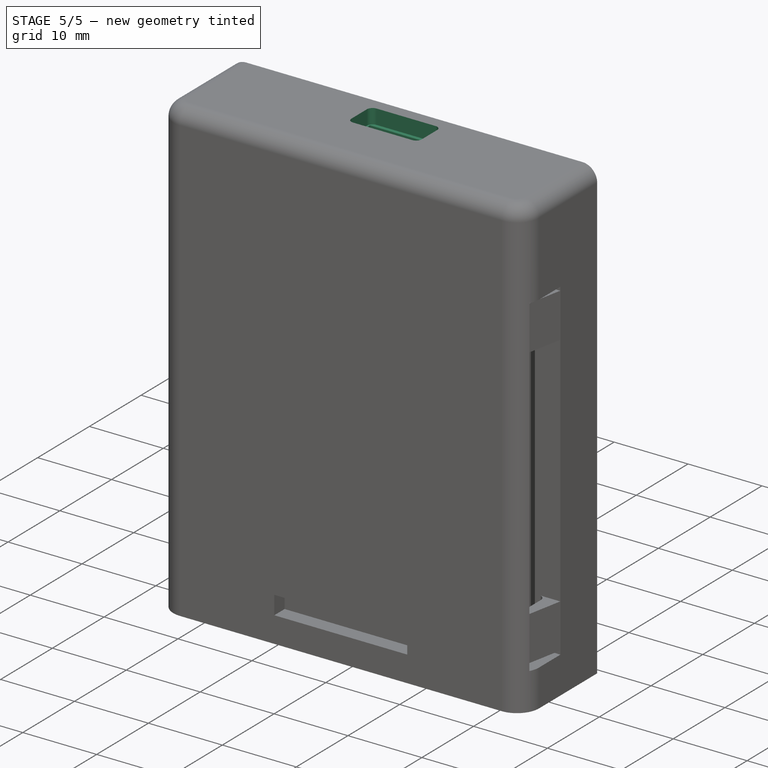
[diagram: stage 5 of 5 — iso view after this stage's code; geometry added in this stage tinted green]
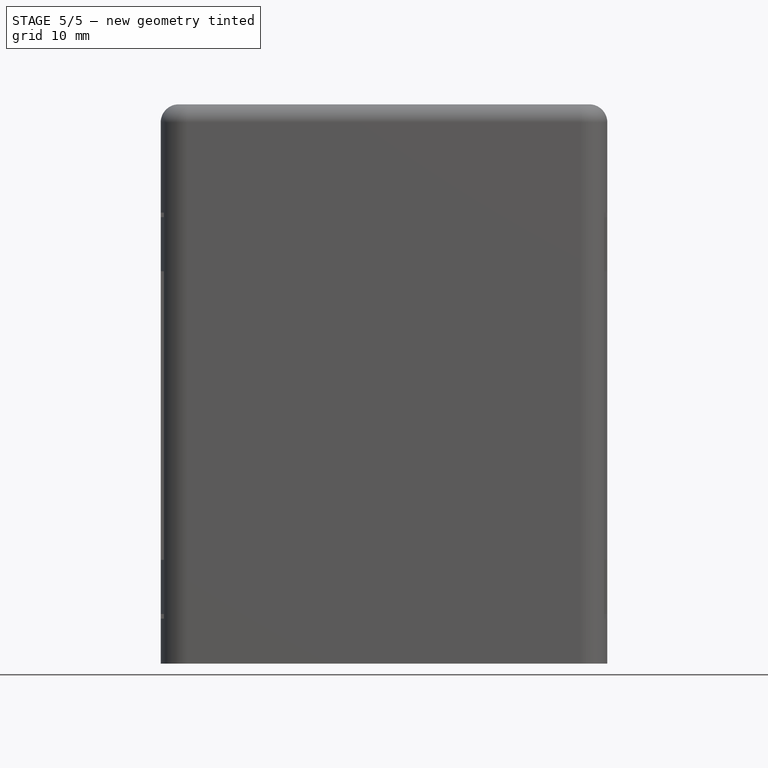
[diagram: stage 5 of 5 — front view after this stage's code; geometry added in this stage tinted green]
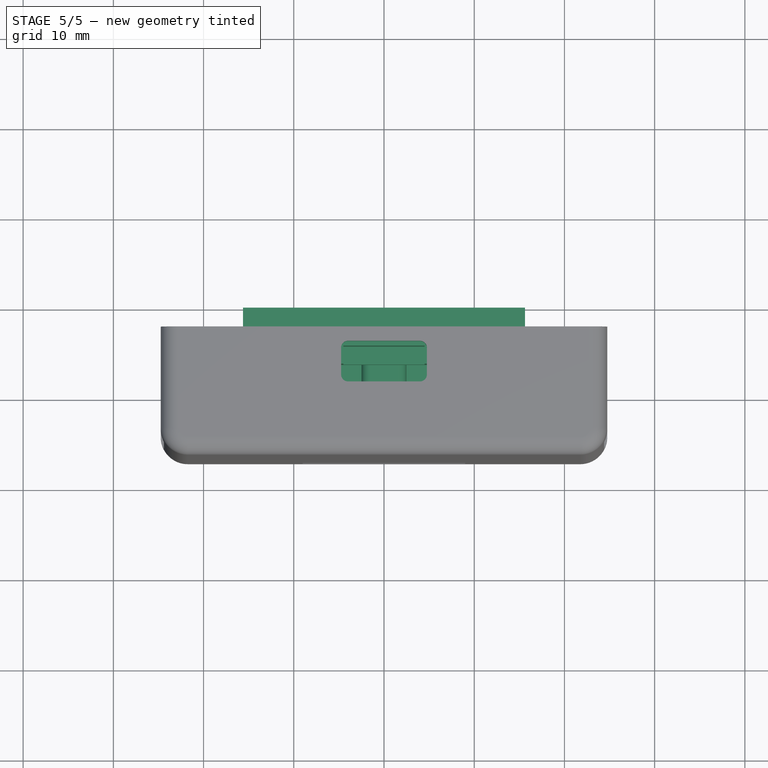
[diagram: stage 5 of 5 — top view after this stage's code; geometry added in this stage tinted green]
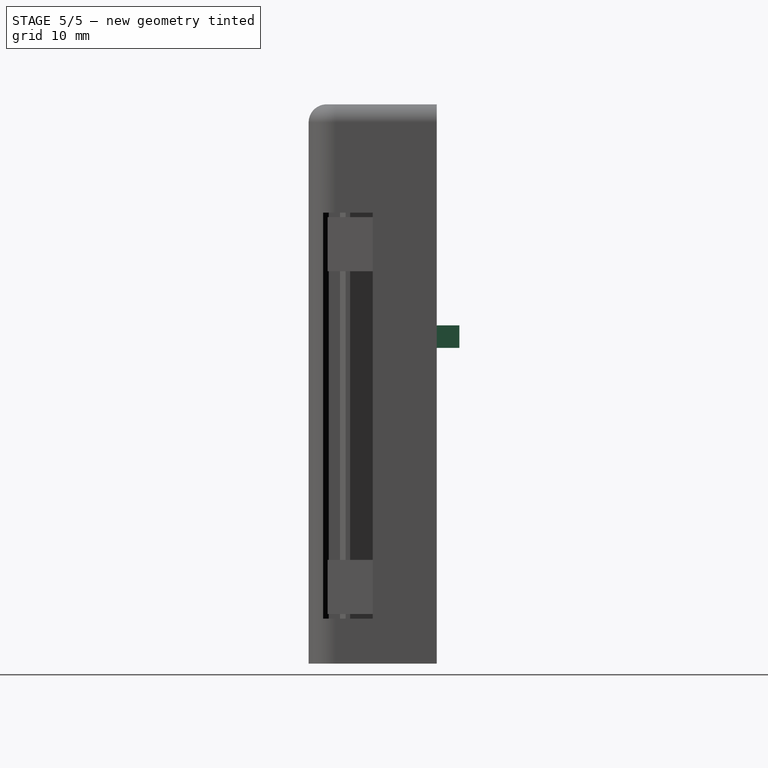
[diagram: stage 5 of 5 — right view after this stage's code; geometry added in this stage tinted green]
FEATURE [Sketcher::SketchObject] Sketch012  label="SketchPowerBoard"
  FullyConstrained = true
  MapMode = 5
  Placement = pos=(0,0,0) rot=(1,0,0;1.5708rad)
  Support = -> [DatumPlane001]
  sketch-geometry (4):
    g0: LineSegment StartX=-8.875 StartY=60.75 StartZ=0 EndX=8.875 EndY=60.75 EndZ=0
    g1: LineSegment StartX=8.875 StartY=60.75 StartZ=0 EndX=8.875 EndY=33.75 EndZ=0
    g2: LineSegment StartX=8.875 StartY=33.75 StartZ=0 EndX=-8.875 EndY=33.75 EndZ=0
    g3: LineSegment StartX=-8.875 StartY=33.75 StartZ=0 EndX=-8.875 EndY=60.75 EndZ=0
  constraints (11):
    c: Coincident(g0,g1)
    c: Coincident(g1,g2)
    c: Coincident(g2,g3)
    c: Coincident(g3,g0)
    c: Horizontal(g2)
    c: Vertical(g1)
    c: Vertical(g3)
    c: Symmetric(g0,g0,g-2)
    c: DistanceY(g2,g0) = 27
    c: DistanceX(g0,g0) = 17.75
    c: DistanceY(g-1,g0) = 60.75
FEATURE [PartDesign::Pocket] Pocket008  label="PocketPowerBoard"
  BaseFeature = -> Pocket007
  Length = 3
  Length2 = 100
  Profile = -> Sketch012
  Type = 0
FEATURE [Sketcher::SketchObject] Sketch013  label="SketchPowerBoardICAndCables"
  FullyConstrained = true
  MapMode = 5
  Placement = pos=(0,0,0) rot=(1,0,0;1.5708rad)
  Support = -> [DatumPlane001]
  sketch-geometry (36):
    g0: LineSegment StartX=-4.5 StartY=61 StartZ=0 EndX=4.5 EndY=61 EndZ=0
    g1: LineSegment StartX=4.5 StartY=61 StartZ=0 EndX=4.5 EndY=53.5 EndZ=0
    g2: LineSegment StartX=4.5 StartY=53.5 StartZ=0 EndX=-4.5 EndY=53.5 EndZ=0
    g3: LineSegment StartX=-4.5 StartY=53.5 StartZ=0 EndX=-4.5 EndY=61 EndZ=0
    g4: LineSegment StartX=-6.875 StartY=51.5 StartZ=0 EndX=6.875 EndY=51.5 EndZ=0
    g5: LineSegment StartX=8.875 StartY=49.5 StartZ=0 EndX=8.875 EndY=39 EndZ=0
    g6: LineSegment StartX=10.875 StartY=37 StartZ=0 EndX=14.1 EndY=37 EndZ=0
    g7: LineSegment StartX=16.1 StartY=35 StartZ=0 EndX=16.1 EndY=11 EndZ=0
    g8: LineSegment StartX=14.1 StartY=9 StartZ=0 EndX=13.1 EndY=9 EndZ=0
    g9: LineSegment StartX=11.1 StartY=11 StartZ=0 EndX=11.1 EndY=22.75 EndZ=0
    g10: LineSegment StartX=9.1 StartY=24.75 StartZ=0 EndX=-9.1 EndY=24.75 EndZ=0
    g11: LineSegment StartX=-11.1 StartY=22.75 StartZ=0 EndX=-11.1 EndY=11 EndZ=0
    g12: LineSegment StartX=-13.1 StartY=9 StartZ=0 EndX=-14.1 EndY=9 EndZ=0
    g13: LineSegment StartX=-16.1 StartY=11 StartZ=0 EndX=-16.1 EndY=35 EndZ=0
    g14: LineSegment StartX=-14.1 StartY=37 StartZ=0 EndX=-10.875 EndY=37 EndZ=0
    g15: LineSegment StartX=-8.875 StartY=39 StartZ=0 EndX=-8.875 EndY=49.5 EndZ=0
    g16: LineSegment StartX=-1.5 StartY=32.75 StartZ=0 EndX=1.5 EndY=32.75 EndZ=0
    g17: LineSegment StartX=2.5 StartY=31.75 StartZ=0 EndX=2.5 EndY=28.75 EndZ=0
    g18: LineSegment StartX=1.5 StartY=27.75 StartZ=0 EndX=-1.5 EndY=27.75 EndZ=0
    g19: LineSegment StartX=-2.5 StartY=28.75 StartZ=0 EndX=-2.5 EndY=31.75 EndZ=0
    g20: ArcOfCircle CenterX=6.875 CenterY=49.5 CenterZ=0 NormalX=0 NormalY=0 NormalZ=1 AngleXU=0 Radius=2 StartAngle=0 EndAngle=1.5708
    g21: ArcOfCircle CenterX=-6.875 CenterY=49.5 CenterZ=0 NormalX=0 NormalY=0 NormalZ=1 AngleXU=0 Radius=2 StartAngle=1.5708 EndAngle=3.14159
    g22: ArcOfCircle CenterX=14.1 CenterY=35 CenterZ=0 NormalX=0 NormalY=0 NormalZ=1 AngleXU=0 Radius=2 StartAngle=-9e-16 EndAngle=1.5708
    g23: ArcOfCircle CenterX=-14.1 CenterY=35 CenterZ=0 NormalX=0 NormalY=0 NormalZ=1 AngleXU=0 Radius=2 StartAngle=1.5708 EndAngle=3.14159
    g24: ArcOfCircle CenterX=-13.1 CenterY=11 CenterZ=0 NormalX=0 NormalY=0 NormalZ=1 AngleXU=0 Radius=2 StartAngle=4.71239 EndAngle=6.28319
    g25: ArcOfCircle CenterX=13.1 CenterY=11 CenterZ=0 NormalX=0 NormalY=0 NormalZ=1 AngleXU=0 Radius=2 StartAngle=3.14159 EndAngle=4.71239
    g26: ArcOfCircle CenterX=14.1 CenterY=11 CenterZ=0 NormalX=0 NormalY=0 NormalZ=1 AngleXU=0 Radius=2 StartAngle=4.71239 EndAngle=6.28319
    g27: ArcOfCircle CenterX=-14.1 CenterY=11 CenterZ=0 NormalX=0 NormalY=0 NormalZ=1 AngleXU=0 Radius=2 StartAngle=3.14159 EndAngle=4.71239
    g28: ArcOfCircle CenterX=-10.875 CenterY=39 CenterZ=0 NormalX=0 NormalY=0 NormalZ=1 AngleXU=0 Radius=2 StartAngle=4.71239 EndAngle=6.28319
    g29: ArcOfCircle CenterX=10.875 CenterY=39 CenterZ=0 NormalX=0 NormalY=0 NormalZ=1 AngleXU=0 Radius=2 StartAngle=3.14159 EndAngle=4.71239
    g30: ArcOfCircle CenterX=9.1 CenterY=22.75 CenterZ=0 NormalX=0 NormalY=0 NormalZ=1 AngleXU=0 Radius=2 StartAngle=1e-16 EndAngle=1.5708
    g31: ArcOfCircle CenterX=-9.1 CenterY=22.75 CenterZ=0 NormalX=0 NormalY=0 NormalZ=1 AngleXU=0 Radius=2 StartAngle=1.5708 EndAngle=3.14159
    g32: ArcOfCircle CenterX=-1.5 CenterY=31.75 CenterZ=0 NormalX=0 NormalY=0 NormalZ=1 AngleXU=0 Radius=1 StartAngle=1.5708 EndAngle=3.14159
    g33: ArcOfCircle CenterX=1.5 CenterY=31.75 CenterZ=0 NormalX=0 NormalY=0 NormalZ=1 AngleXU=0 Radius=1 StartAngle=-1.8e-15 EndAngle=1.5708
    g34: ArcOfCircle CenterX=1.5 CenterY=28.75 CenterZ=0 NormalX=0 NormalY=0 NormalZ=1 AngleXU=0 Radius=1 StartAngle=4.71239 EndAngle=6.28319
    g35: ArcOfCircle CenterX=-1.5 CenterY=28.75 CenterZ=0 NormalX=0 NormalY=0 NormalZ=1 AngleXU=0 Radius=1 StartAngle=3.14159 EndAngle=4.71239
  constraints (83):
    c: Coincident(g0,g1)
    c: Coincident(g1,g2)
    c: Coincident(g2,g3)
    c: Coincident(g3,g0)
    c: Horizontal(g0)
    c: Vertical(g1)
    c: Vertical(g3)
    c: Horizontal(g6)
    c: Vertical(g7)
    c: Horizontal(g8)
    c: Vertical(g9)
    c: Vertical(g17)
    c: DistanceY(g-1,g0) = 61
    c: DistanceY(g2,g0) = 7.5
    c: DistanceX(g0,g0) = 9
    c: Symmetric(g2,g1,g-2)
    c: Tangent(g4,g20) = 1.5708
    c: Tangent(g5,g20) = 1.5708
    c: Tangent(g4,g21) = 1.5708
    c: Tangent(g15,g21) = 1.5708
    c: DistanceY(g4,g0) = 9.5
    c: DistanceX(g15,g5) = 17.75
    c: Symmetric(g15,g5,g-2)
    c: Symmetric(g4,g4,g-2)
    c: Radius(g20) = 2
    c: Tangent(g6,g22) = 1.5708
    c: Tangent(g7,g22) = 1.5708
    c: Tangent(g13,g23) = 1.5708
    c: Tangent(g14,g23) = 1.5708
    c: Symmetric(g14,g6,g-2)
    c: Symmetric(g13,g7,g-2)
    c: Radius(g22) = 2
    c: Tangent(g11,g24) = 1.5708
    c: Tangent(g12,g24) = 1.5708
    c: DistanceX(g11,g-1) = 11.1
    c: Tangent(g8,g25) = 1.5708
    c: Tangent(g9,g25) = 1.5708
    c: Tangent(g7,g26) = 1.5708
    c: Tangent(g8,g26) = 1.5708
    c: DistanceX(g9,g7) = 5
    c: Tangent(g12,g27) = 1.5708
    c: Tangent(g13,g27) = 1.5708
    c: Symmetric(g13,g7,g-2)
    c: Symmetric(g12,g8,g-2)
    c: Symmetric(g8,g12,g-2)
    c: Symmetric(g11,g9,g-2)
    c: DistanceY(g12,g14) = 28
    c: Radius(g27) = 2
    c: Radius(g24) = 2
    c: Tangent(g14,g28) = -1.5708
    c: Tangent(g15,g28) = -1.5708
    c: Tangent(g5,g29) = -1.5708
    c: Tangent(g6,g29) = -1.5708
    c: DistanceY(g6,g0) = 24
    c: Symmetric(g5,g15,g-2)
    c: Symmetric(g6,g14,g-2)
    c: Vertical(g5)
    c: Radius(g29) = 2
    c: Tangent(g9,g30) = -1.5708
    c: Tangent(g10,g30) = -1.5708
    c: Tangent(g10,g31) = -1.5708
    c: Tangent(g11,g31) = -1.5708
    c: Symmetric(g11,g9,g-2)
    c: Symmetric(g10,g10,g-2)
    c: Radius(g31) = 2
    c: Tangent(g16,g32) = 1.5708
    c: Tangent(g19,g32) = 1.5708
    c: Tangent(g16,g33) = 1.5708
    c: Tangent(g17,g33) = 1.5708
    c: Tangent(g17,g34) = 1.5708
    c: Tangent(g18,g34) = 1.5708
    c: Tangent(g18,g35) = 1.5708
    c: Tangent(g19,g35) = 1.5708
    c: Symmetric(g17,g19,g-2)
    c: Symmetric(g17,g19,g-2)
    c: Symmetric(g16,g16,g-2)
    c: Symmetric(g18,g18,g-2)
    c: DistanceY(g18,g16) = 5
    c: DistanceX(g19,g17) = 5
    c: DistanceY(g10,g18) = 3
    c: Radius(g33) = 1
    c: Radius(g34) = 1
    c: DistanceY(g-1,g10) = 24.75
FEATURE [PartDesign::Pocket] Pocket009  label="PocketPowerBoardICAndCables"
  BaseFeature = -> Pocket008
  Length = 5
  Length2 = 100
  Profile = -> Sketch013
  Type = 0
FEATURE [PartDesign::Plane] DatumPlane007  label="DatumPlaneSquaredTop"
  Length = 60
  MapMode = 5
  Placement = pos=(0,0,62) rot=(0,0,1;0rad)
  ResizeMode = 0
  Support = -> [Pocket009]
  Width = 60
FEATURE [Sketcher::SketchObject] Sketch014  label="SketchUSBPort"
  FullyConstrained = true
  MapMode = 5
  Placement = pos=(0,0,62) rot=(0,0,1;0rad)
  Support = -> [DatumPlane007]
  sketch-geometry (8):
    g0: LineSegment StartX=-4 StartY=5.5 StartZ=0 EndX=4 EndY=5.5 EndZ=0
    g1: LineSegment StartX=4.75 StartY=4.75 StartZ=0 EndX=4.75 EndY=1.75 EndZ=0
    g2: LineSegment StartX=4 StartY=1 StartZ=0 EndX=-4 EndY=1 EndZ=0
    g3: LineSegment StartX=-4.75 StartY=1.75 StartZ=0 EndX=-4.75 EndY=4.75 EndZ=0
    g4: ArcOfCircle CenterX=-4 CenterY=4.75 CenterZ=0 NormalX=0 NormalY=0 NormalZ=1 AngleXU=0 Radius=0.75 StartAngle=1.5708 EndAngle=3.14159
    g5: ArcOfCircle CenterX=4 CenterY=4.75 CenterZ=0 NormalX=0 NormalY=0 NormalZ=1 AngleXU=0 Radius=0.75 StartAngle=0 EndAngle=1.5708
    g6: ArcOfCircle CenterX=4 CenterY=1.75 CenterZ=0 NormalX=0 NormalY=0 NormalZ=1 AngleXU=0 Radius=0.75 StartAngle=4.71239 EndAngle=6.28319
    g7: ArcOfCircle CenterX=-4 CenterY=1.75 CenterZ=0 NormalX=0 NormalY=0 NormalZ=1 AngleXU=0 Radius=0.75 StartAngle=3.14159 EndAngle=4.71239
  constraints (17):
    c: Vertical(g1)
    c: Tangent(g0,g4) = 1.5708
    c: Tangent(g3,g4) = 1.5708
    c: Tangent(g0,g5) = 1.5708
    c: Tangent(g1,g5) = 1.5708
    c: Tangent(g1,g6) = 1.5708
    c: Tangent(g2,g6) = 1.5708
    c: Tangent(g2,g7) = 1.5708
    c: Tangent(g3,g7) = 1.5708
    c: DistanceY(g-1,g0) = 5.5
    c: DistanceX(g3,g1) = 9.5
    c: DistanceY(g2,g0) = 4.5
    c: Radius(g5) = 0.75
    c: Radius(g6) = 0.75
    c: Symmetric(g3,g1,g-2)
    c: Symmetric(g0,g0,g-2)
    c: Symmetric(g2,g2,g-2)
FEATURE [PartDesign::Pocket] Pocket010  label="PocketUSBPort"
  BaseFeature = -> Pocket009
  Length = 2
  Length2 = 100
  Profile = -> Sketch014
  Type = 0
FEATURE [PartDesign::Plane] DatumPlane008  label="DatumPlaneSquaredOutter"
  Length = 60
  MapMode = 5
  Placement = pos=(0,7.1,0) rot=(0,0.707107,0.707107;3.14159rad)
  ResizeMode = 0
  Support = -> [Pocket010]
  Width = 60
FEATURE [Sketcher::SketchObject] Sketch015  label="SketchBlock"
  FullyConstrained = true
  MapMode = 5
  Placement = pos=(0,7.1,0) rot=(0,0.707107,0.707107;3.14159rad)
  Support = -> [DatumPlane008]
  sketch-geometry (4):
    g0: LineSegment StartX=-15.625 StartY=37.5 StartZ=0 EndX=15.625 EndY=37.5 EndZ=0
    g1: LineSegment StartX=15.625 StartY=37.5 StartZ=0 EndX=15.625 EndY=35 EndZ=0
    g2: LineSegment StartX=15.625 StartY=35 StartZ=0 EndX=-15.625 EndY=35 EndZ=0
    g3: LineSegment StartX=-15.625 StartY=35 StartZ=0 EndX=-15.625 EndY=37.5 EndZ=0
  constraints (11):
    c: Coincident(g0,g1)
    c: Coincident(g1,g2)
    c: Coincident(g2,g3)
    c: Coincident(g3,g0)
    c: Horizontal(g2)
    c: Vertical(g1)
    c: Vertical(g3)
    c: Symmetric(g0,g0,g-2)
    c: DistanceX(g0,g0) = 31.25
    c: DistanceY(g1,g0) = 2.5
    c: DistanceY(g-1,g1) = 35
FEATURE [PartDesign::Pad] Pad003  label="PadBlock"
  BaseFeature = -> Pocket010
  Direction = (1,1,1)
  Length = 2.5
  Length2 = 100
  Profile = -> Sketch015
  Type = 0
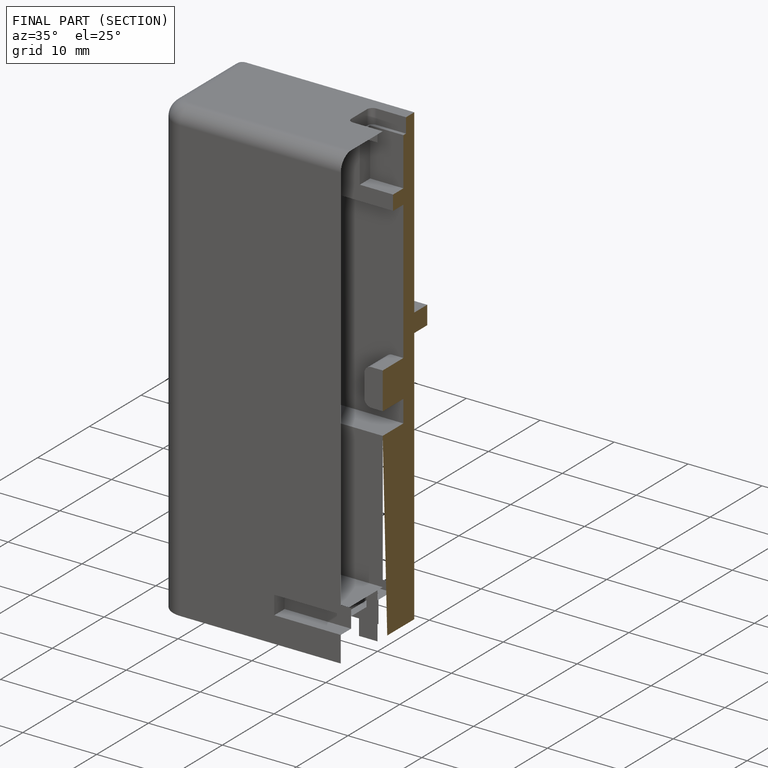
[diagram: finished part — half-section view (interior)]
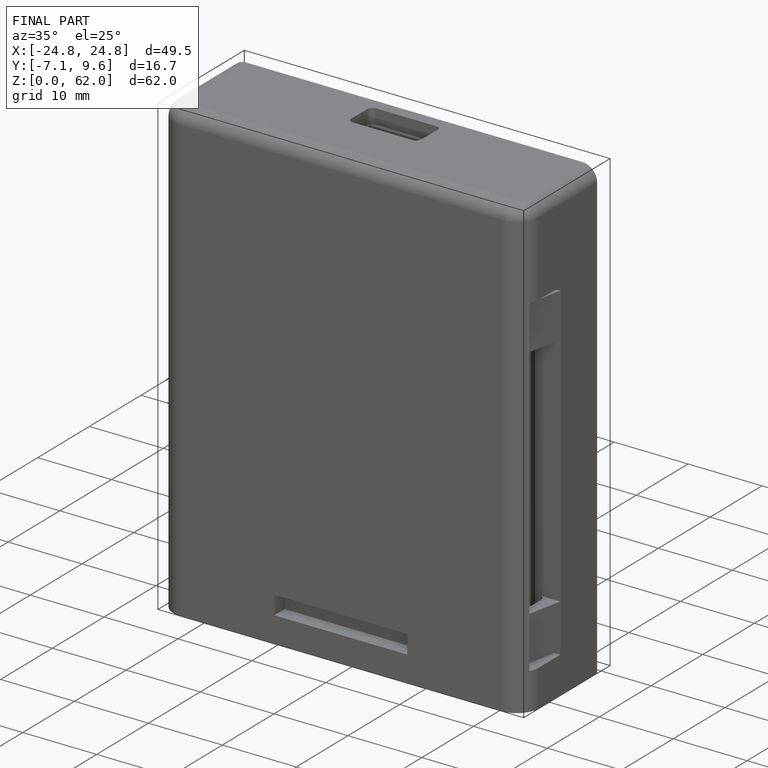
[diagram: finished part — iso view with bounding-box wireframe]
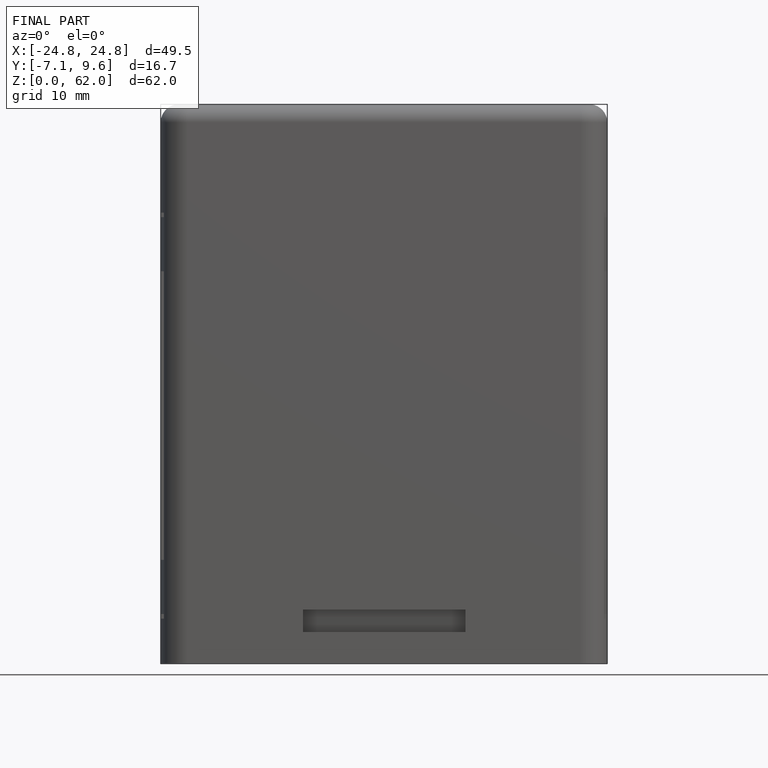
[diagram: finished part — front view with bounding-box wireframe]
